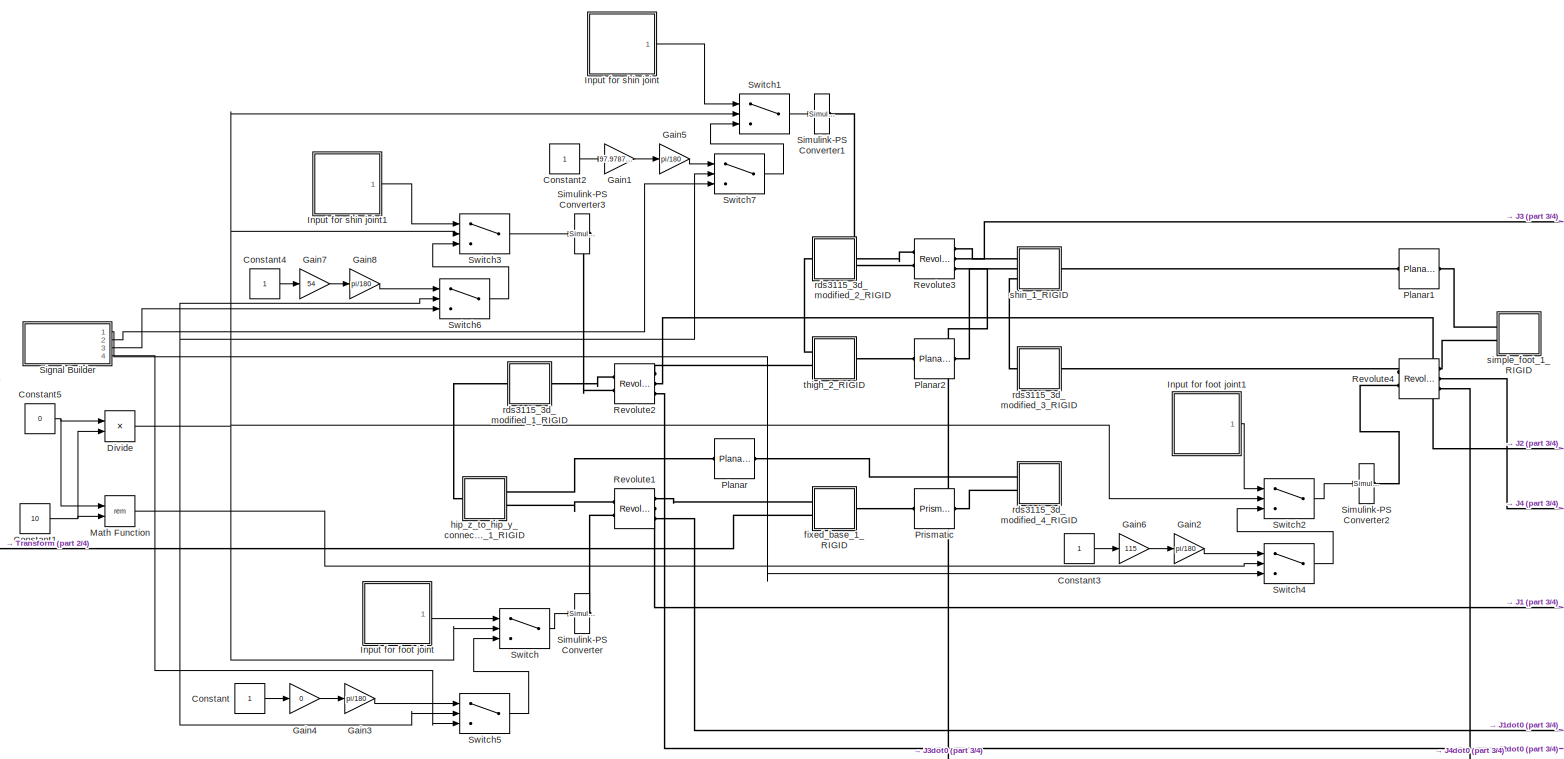
[diagram: root canvas - part 1/4, full width, middle band]
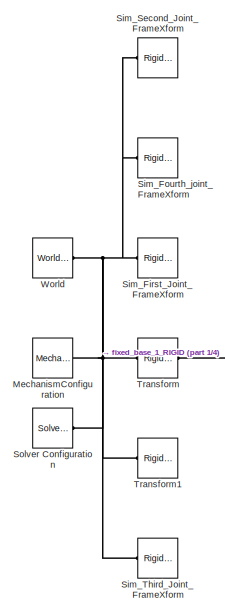
[diagram: root canvas - part 2/4, middle left region]
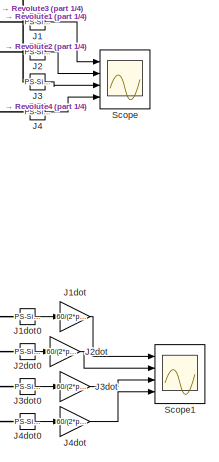
[diagram: root canvas - part 3/4, middle right region]
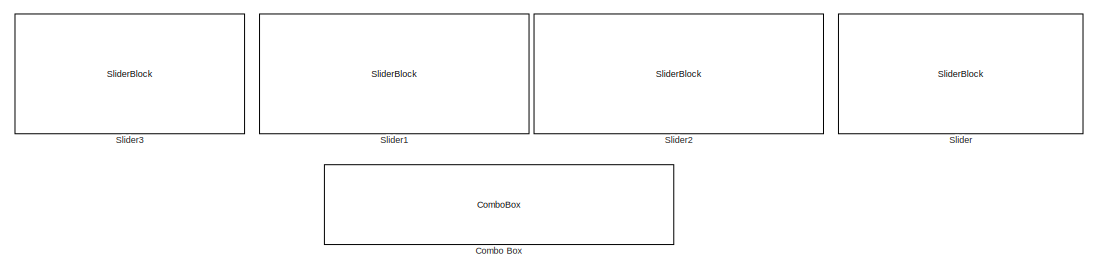
[diagram: root canvas - part 4/4, bottom center region]
MODEL slx_aab422bd7d5e
KIND model
CONFIG AbsTol = auto
CONFIG EnableMultiTasking = off
CONFIG FixedStep = auto
CONFIG MaxStep = auto
CONFIG MinStep = auto
CONFIG RelTol = 1e-3
CONFIG SampleTimeConstraint = Unconstrained
CONFIG SolverName = VariableStepAuto
CONFIG StartTime = 0.0
CONFIG StopTime = 10
WORKSPACE source: external: MATLAB File  (data not in archive)
BLOCK [ComboBox] Combo Box
  LabelPosition = Hide
  SelectedLabel = Signal Builder
BLOCK [Constant] Constant
BLOCK [Constant] Constant1
  Value = 10
BLOCK [Constant] Constant2
BLOCK [Constant] Constant3
BLOCK [Constant] Constant4
BLOCK [Constant] Constant5
  Value = 0
BLOCK [Product] Divide
  Inputs = */
  OutDataTypeStr = int8
  Ports = [2, 1]
BLOCK [Gain] Gain1
  Gain = 97.97872340425532
BLOCK [Gain] Gain2
  Gain = pi/180
BLOCK [Gain] Gain3
  Gain = pi/180
BLOCK [Gain] Gain4
  Gain = 0
BLOCK [Gain] Gain5
  Gain = pi/180
BLOCK [Gain] Gain6
  Gain = 115
BLOCK [Gain] Gain7
  Gain = 54
BLOCK [Gain] Gain8
  Gain = pi/180
BLOCK [SubSystem] Input for foot joint
  Ports = [0, 1]
  RequestExecContextInheritance = off
BLOCK [Clock] Input for foot joint/Clock
BLOCK [Constant] Input for foot joint/Constant
  Value = 95
BLOCK [Constant] Input for foot joint/Constant1
  Value = 0.25
BLOCK [Gain] Input for foot joint/Gain
  Gain = 30
BLOCK [Gain] Input for foot joint/Gain1
  Gain = pi/180
BLOCK [Gain] Input for foot joint/Gain2
  Gain = 2
BLOCK [Outport] Input for foot joint/J1
BLOCK [Reference] Input for foot joint/Sine  REF=simulink/Lookup
Tables/Sine
  Ports = [1, 1]
  SourceBlock = simulink/Lookup\nTables/Sine
  SourceProductBaseCode = SL
  SourceType = Sine and Cosine
BLOCK [Sum] Input for foot joint/Sum
  Inputs = |++
  Ports = [2, 1]
BLOCK [Sum] Input for foot joint/Sum1
  Inputs = |++
  Ports = [2, 1]
BLOCK [SubSystem] Input for foot joint1
  Ports = [0, 1]
  RequestExecContextInheritance = off
BLOCK [Clock] Input for foot joint1/Clock
BLOCK [Constant] Input for foot joint1/Constant
  Value = 95
BLOCK [Constant] Input for foot joint1/Constant1
  Value = 0.25
BLOCK [Gain] Input for foot joint1/Gain
  Gain = 30
BLOCK [Gain] Input for foot joint1/Gain1
  Gain = pi/180
BLOCK [Gain] Input for foot joint1/Gain2
  Gain = 2
BLOCK [Outport] Input for foot joint1/J4
BLOCK [Reference] Input for foot joint1/Sine  REF=simulink/Lookup
Tables/Sine
  Ports = [1, 1]
  SourceBlock = simulink/Lookup\nTables/Sine
  SourceProductBaseCode = SL
  SourceType = Sine and Cosine
BLOCK [Sum] Input for foot joint1/Sum
  Inputs = |++
  Ports = [2, 1]
BLOCK [Sum] Input for foot joint1/Sum1
  Inputs = |++
  Ports = [2, 1]
BLOCK [SubSystem] Input for shin joint
  Ports = [0, 1]
  RequestExecContextInheritance = off
BLOCK [Clock] Input for shin joint/Clock
BLOCK [Constant] Input for shin joint/Constant
  Value = 62.5
BLOCK [Constant] Input for shin joint/Constant1
  Value = 0.5
BLOCK [Gain] Input for shin joint/Gain
  Gain = 60
BLOCK [Gain] Input for shin joint/Gain1
  Gain = pi/180
BLOCK [Gain] Input for shin joint/Gain2
BLOCK [Outport] Input for shin joint/J3
BLOCK [Reference] Input for shin joint/Sine  REF=simulink/Lookup
Tables/Sine
  Ports = [1, 1]
  SourceBlock = simulink/Lookup\nTables/Sine
  SourceProductBaseCode = SL
  SourceType = Sine and Cosine
BLOCK [Sum] Input for shin joint/Sum
  Inputs = |++
  Ports = [2, 1]
BLOCK [Sum] Input for shin joint/Sum1
  Inputs = |++
  Ports = [2, 1]
BLOCK [SubSystem] Input for shin joint1
  Ports = [0, 1]
  RequestExecContextInheritance = off
BLOCK [Clock] Input for shin joint1/Clock
BLOCK [Constant] Input for shin joint1/Constant
  Value = 0
BLOCK [Constant] Input for shin joint1/Constant1
  Value = 0
BLOCK [Gain] Input for shin joint1/Gain
  Gain = 85
BLOCK [Gain] Input for shin joint1/Gain1
  Gain = pi/180
BLOCK [Gain] Input for shin joint1/Gain2
  Gain = 0.6
BLOCK [Outport] Input for shin joint1/J2
BLOCK [Reference] Input for shin joint1/Sine  REF=simulink/Lookup
Tables/Sine
  Ports = [1, 1]
  SourceBlock = simulink/Lookup\nTables/Sine
  SourceProductBaseCode = SL
  SourceType = Sine and Cosine
BLOCK [Sum] Input for shin joint1/Sum
  Inputs = |++
  Ports = [2, 1]
BLOCK [Sum] Input for shin joint1/Sum1
  Inputs = |++
  Ports = [2, 1]
BLOCK [Reference] J1  REF=nesl_utility/PS-Simulink
Converter
  Ports = [0, 1, 0, 0, 0, 1]
  SourceBlock = nesl_utility/PS-Simulink\nConverter
  SourceProductBaseCode = PW,SS
  SourceType = PS-Simulink\nConverter
BLOCK [Gain] J1dot
  Gain = 60/(2*pi)
BLOCK [Reference] J1dot0  REF=nesl_utility/PS-Simulink
Converter
  Ports = [0, 1, 0, 0, 0, 1]
  SourceBlock = nesl_utility/PS-Simulink\nConverter
  SourceProductBaseCode = PW,SS
  SourceType = PS-Simulink\nConverter
BLOCK [Reference] J2  REF=nesl_utility/PS-Simulink
Converter
  Ports = [0, 1, 0, 0, 0, 1]
  SourceBlock = nesl_utility/PS-Simulink\nConverter
  SourceProductBaseCode = PW,SS
  SourceType = PS-Simulink\nConverter
BLOCK [Gain] J2dot
  Gain = 60/(2*pi)
BLOCK [Reference] J2dot0  REF=nesl_utility/PS-Simulink
Converter
  Ports = [0, 1, 0, 0, 0, 1]
  SourceBlock = nesl_utility/PS-Simulink\nConverter
  SourceProductBaseCode = PW,SS
  SourceType = PS-Simulink\nConverter
BLOCK [Reference] J3  REF=nesl_utility/PS-Simulink
Converter
  Ports = [0, 1, 0, 0, 0, 1]
  SourceBlock = nesl_utility/PS-Simulink\nConverter
  SourceProductBaseCode = PW,SS
  SourceType = PS-Simulink\nConverter
BLOCK [Gain] J3dot
  Gain = 60/(2*pi)
BLOCK [Reference] J3dot0  REF=nesl_utility/PS-Simulink
Converter
  Ports = [0, 1, 0, 0, 0, 1]
  SourceBlock = nesl_utility/PS-Simulink\nConverter
  SourceProductBaseCode = PW,SS
  SourceType = PS-Simulink\nConverter
BLOCK [Reference] J4  REF=nesl_utility/PS-Simulink
Converter
  Ports = [0, 1, 0, 0, 0, 1]
  SourceBlock = nesl_utility/PS-Simulink\nConverter
  SourceProductBaseCode = PW,SS
  SourceType = PS-Simulink\nConverter
BLOCK [Gain] J4dot
  Gain = 60/(2*pi)
BLOCK [Reference] J4dot0  REF=nesl_utility/PS-Simulink
Converter
  Ports = [0, 1, 0, 0, 0, 1]
  SourceBlock = nesl_utility/PS-Simulink\nConverter
  SourceProductBaseCode = PW,SS
  SourceType = PS-Simulink\nConverter
BLOCK [Math] Math Function
  Operator = rem
  Ports = [2, 1]
BLOCK [Reference] MechanismConfiguration  REF=sm_lib/Utilities/Mechanism
Configuration
  Ports = [0, 0, 0, 0, 0, 0, 1]
  SourceBlock = sm_lib/Utilities/Mechanism\nConfiguration
  SourceProductBaseCode = MS
  SourceType = Mechanism\nConfiguration
BLOCK [Reference] Planar  REF=sm_lib/Joints/Planar Joint
  Ports = [0, 0, 0, 0, 0, 1, 1]
  SourceBlock = sm_lib/Joints/Planar Joint
  SourceProductBaseCode = MS
  SourceType = Planar Joint
BLOCK [Reference] Planar1  REF=sm_lib/Joints/Planar Joint
  Ports = [0, 0, 0, 0, 0, 1, 1]
  SourceBlock = sm_lib/Joints/Planar Joint
  SourceProductBaseCode = MS
  SourceType = Planar Joint
BLOCK [Reference] Planar2  REF=sm_lib/Joints/Planar Joint
  Ports = [0, 0, 0, 0, 0, 1, 1]
  SourceBlock = sm_lib/Joints/Planar Joint
  SourceProductBaseCode = MS
  SourceType = Planar Joint
BLOCK [Reference] Prismatic  REF=sm_lib/Joints/Prismatic
Joint
  Ports = [0, 0, 0, 0, 0, 1, 1]
  SourceBlock = sm_lib/Joints/Prismatic\nJoint
  SourceProductBaseCode = MS
  SourceType = Prismatic\nJoint
BLOCK [Reference] Revolute1  REF=sm_lib/Joints/Revolute Joint
  Ports = [0, 0, 0, 0, 0, 2, 3]
  SourceBlock = sm_lib/Joints/Revolute Joint
  SourceProductBaseCode = MS
  SourceType = Revolute Joint
BLOCK [Reference] Revolute2  REF=sm_lib/Joints/Revolute Joint
  Ports = [0, 0, 0, 0, 0, 2, 3]
  SourceBlock = sm_lib/Joints/Revolute Joint
  SourceProductBaseCode = MS
  SourceType = Revolute Joint
BLOCK [Reference] Revolute3  REF=sm_lib/Joints/Revolute Joint
  Ports = [0, 0, 0, 0, 0, 2, 3]
  SourceBlock = sm_lib/Joints/Revolute Joint
  SourceProductBaseCode = MS
  SourceType = Revolute Joint
BLOCK [Reference] Revolute4  REF=sm_lib/Joints/Revolute Joint
  Ports = [0, 0, 0, 0, 0, 2, 3]
  SourceBlock = sm_lib/Joints/Revolute Joint
  SourceProductBaseCode = MS
  SourceType = Revolute Joint
BLOCK [Scope] Scope
  Floating = off
  NumInputPorts = 4
  Ports = [4]
  ScopeSpecificationString = Simulink.scopes.TimeScopeBlockCfg('CurrentConfiguration', extmgr.ConfigurationSet(extmgr.Configuration('Core','General UI',true),extmgr.Configuration('Core','Source UI',true),extmgr.Configuration('Sources','WiredSimulink',true),extmgr.Configuration('Visuals','Time Domain',true,'SerializedDisplays',{struct('MinYLimReal','-0.35736','MaxYLimReal','0.21732','YLabelReal','','MinYLimMag','0.00000','MaxY...<+3411ch>
BLOCK [Scope] Scope1
  Floating = off
  NumInputPorts = 4
  Ports = [4]
  ScopeSpecificationString = Simulink.scopes.TimeScopeBlockCfg('CurrentConfiguration', extmgr.ConfigurationSet(extmgr.Configuration('Core','General UI',true),extmgr.Configuration('Core','Source UI',true),extmgr.Configuration('Sources','WiredSimulink',true,'DataLoggingVariableName','ScopeData1'),extmgr.Configuration('Visuals','Time Domain',true,'SerializedDisplays',{struct('MinYLimReal','-1.44413','MaxYLimReal','1.83955','YLab...<+3463ch>
BLOCK [SubSystem] Signal Builder
  ClipboardFcn = sigbuilder_block('clipboard');
  CloseFcn = sigbuilder_block('close');
  ContinueFcn = sigbuilder_block('continue');
  CopyFcn = sigbuilder_block('copy');
  DeleteFcn = sigbuilder_block('delete');
  LoadFcn = sigbuilder_block('load');
  MaskHideContents = on
  ModelCloseFcn = sigbuilder_block('modelClose');
  NameChangeFcn = sigbuilder_block('namechange');
  NameLocation = top
  OpenFcn = sigbuilder_block('open',[5.4 30 1141.2 522.6 ]);
  PauseFcn = sigbuilder_block('pause');
  Ports = [0, 4]
  PreSaveFcn = sigbuilder_block('preSave');
  RequestExecContextInheritance = off
  StartFcn = sigbuilder_block('start');
  StopFcn = sigbuilder_block('stop');
  Tag = STV Subsys
BLOCK [Demux] Signal Builder/Demux
  DisplayOption = none
  Ports = [1, 4]
  Tag = STV Demux
BLOCK [FromWorkspace] Signal Builder/FromWs
  Tag = STV FromWs
  VariableName = tuvar
BLOCK [Outport] Signal Builder/Signal 1
  Port = 4
  Tag = STV Outport
BLOCK [Outport] Signal Builder/Signal 2
  Port = 3
  Tag = STV Outport
BLOCK [Outport] Signal Builder/Signal 3
  Port = 2
  Tag = STV Outport
BLOCK [Outport] Signal Builder/Signal 4
  Tag = STV Outport
BLOCK [Reference] Sim_First_Joint_FrameXform  REF=sm_lib/Frames and
Transforms/Rigid
Transform
  Ports = [0, 0, 0, 0, 0, 1, 1]
  SourceBlock = sm_lib/Frames and\nTransforms/Rigid\nTransform
  SourceProductBaseCode = MS
  SourceType = Rigid\nTransform
BLOCK [Reference] Sim_Fourth_joint_FrameXform  REF=sm_lib/Frames and
Transforms/Rigid
Transform
  Ports = [0, 0, 0, 0, 0, 1, 1]
  SourceBlock = sm_lib/Frames and\nTransforms/Rigid\nTransform
  SourceProductBaseCode = MS
  SourceType = Rigid\nTransform
BLOCK [Reference] Sim_Second_Joint_FrameXform  REF=sm_lib/Frames and
Transforms/Rigid
Transform
  Ports = [0, 0, 0, 0, 0, 1, 1]
  SourceBlock = sm_lib/Frames and\nTransforms/Rigid\nTransform
  SourceProductBaseCode = MS
  SourceType = Rigid\nTransform
BLOCK [Reference] Sim_Third_Joint_FrameXform  REF=sm_lib/Frames and
Transforms/Rigid
Transform
  Ports = [0, 0, 0, 0, 0, 1, 1]
  SourceBlock = sm_lib/Frames and\nTransforms/Rigid\nTransform
  SourceProductBaseCode = MS
  SourceType = Rigid\nTransform
BLOCK [Reference] Simulink-PS Converter  REF=nesl_utility/Simulink-PS
Converter
  NameLocation = left
  Ports = [1, 0, 0, 0, 0, 0, 1]
  SourceBlock = nesl_utility/Simulink-PS\nConverter
  SourceProductBaseCode = PW,SS
  SourceType = Simulink-PS\nConverter
BLOCK [Reference] Simulink-PS Converter1  REF=nesl_utility/Simulink-PS
Converter
  NameLocation = left
  Ports = [1, 0, 0, 0, 0, 0, 1]
  SourceBlock = nesl_utility/Simulink-PS\nConverter
  SourceProductBaseCode = PW,SS
  SourceType = Simulink-PS\nConverter
BLOCK [Reference] Simulink-PS Converter2  REF=nesl_utility/Simulink-PS
Converter
  NameLocation = left
  Ports = [1, 0, 0, 0, 0, 0, 1]
  SourceBlock = nesl_utility/Simulink-PS\nConverter
  SourceProductBaseCode = PW,SS
  SourceType = Simulink-PS\nConverter
BLOCK [Reference] Simulink-PS Converter3  REF=nesl_utility/Simulink-PS
Converter
  NameLocation = left
  Ports = [1, 0, 0, 0, 0, 0, 1]
  SourceBlock = nesl_utility/Simulink-PS\nConverter
  SourceProductBaseCode = PW,SS
  SourceType = Simulink-PS\nConverter
BLOCK [SliderBlock] Slider
  ScaleMax = 130
  ScaleMin = 60
BLOCK [SliderBlock] Slider1
  ScaleMax = 90
  ScaleMin = -90
BLOCK [SliderBlock] Slider2
  ScaleMax = 120
  ScaleMin = 5
BLOCK [SliderBlock] Slider3
  ScaleMax = 360
BLOCK [Reference] Solver Configuration  REF=nesl_utility/Solver
Configuration
  Ports = [0, 0, 0, 0, 0, 0, 1]
  SourceBlock = nesl_utility/Solver\nConfiguration
  SourceProductBaseCode = PW,SS
  SourceType = Solver\nConfiguration
BLOCK [Switch] Switch
  Criteria = u2 > Threshold
  InputSameDT = off
  SaturateOnIntegerOverflow = off
BLOCK [Switch] Switch1
  Criteria = u2 > Threshold
  InputSameDT = off
  SaturateOnIntegerOverflow = off
BLOCK [Switch] Switch2
  Criteria = u2 > Threshold
  InputSameDT = off
  SaturateOnIntegerOverflow = off
BLOCK [Switch] Switch3
  Criteria = u2 > Threshold
  InputSameDT = off
  SaturateOnIntegerOverflow = off
BLOCK [Switch] Switch4
  Criteria = u2 > Threshold
  InputSameDT = off
  SaturateOnIntegerOverflow = off
BLOCK [Switch] Switch5
  Criteria = u2 > Threshold
  InputSameDT = off
  SaturateOnIntegerOverflow = off
BLOCK [Switch] Switch6
  Criteria = u2 > Threshold
  InputSameDT = off
  SaturateOnIntegerOverflow = off
BLOCK [Switch] Switch7
  Criteria = u2 > Threshold
  InputSameDT = off
  SaturateOnIntegerOverflow = off
BLOCK [Reference] Transform  REF=sm_lib/Frames and
Transforms/Rigid
Transform
  Ports = [0, 0, 0, 0, 0, 1, 1]
  SourceBlock = sm_lib/Frames and\nTransforms/Rigid\nTransform
  SourceProductBaseCode = MS
  SourceType = Rigid\nTransform
BLOCK [Reference] Transform1  REF=sm_lib/Frames and
Transforms/Rigid
Transform
  Ports = [0, 0, 0, 0, 0, 1, 1]
  SourceBlock = sm_lib/Frames and\nTransforms/Rigid\nTransform
  SourceProductBaseCode = MS
  SourceType = Rigid\nTransform
BLOCK [Reference] World  REF=sm_lib/Frames and
Transforms/World Frame
  Ports = [0, 0, 0, 0, 0, 0, 1]
  SourceBlock = sm_lib/Frames and\nTransforms/World Frame
  SourceProductBaseCode = MS
  SourceType = World Frame
BLOCK [SubSystem] fixed_base_1_RIGID
  Ports = [0, 0, 0, 0, 0, 2, 1]
  RequestExecContextInheritance = off
BLOCK [PMIOPort] fixed_base_1_RIGID/F
  Side = Left
BLOCK [PMIOPort] fixed_base_1_RIGID/F1
  Port = 3
  Side = Right
BLOCK [PMIOPort] fixed_base_1_RIGID/F2
  Port = 2
  Side = Left
BLOCK [Reference] fixed_base_1_RIGID/ReferenceFrame  REF=sm_lib/Frames and
Transforms/Reference
Frame
  Ports = [0, 0, 0, 0, 0, 0, 1]
  SourceBlock = sm_lib/Frames and\nTransforms/Reference\nFrame
  SourceProductBaseCode = MS
  SourceType = Reference\nFrame
BLOCK [Reference] fixed_base_1_RIGID/Solid  REF=sm_lib/Body Elements/File Solid
  Ports = [0, 0, 0, 0, 0, 0, 1]
  SourceBlock = sm_lib/Body Elements/File Solid
  SourceProductBaseCode = MS
  SourceType = File Solid
BLOCK [Reference] fixed_base_1_RIGID/Transform  REF=sm_lib/Frames and
Transforms/Rigid
Transform
  Ports = [0, 0, 0, 0, 0, 1, 1]
  SourceBlock = sm_lib/Frames and\nTransforms/Rigid\nTransform
  SourceProductBaseCode = MS
  SourceType = Rigid\nTransform
BLOCK [Reference] fixed_base_1_RIGID/Transform1  REF=sm_lib/Frames and
Transforms/Rigid
Transform
  Ports = [0, 0, 0, 0, 0, 1, 1]
  SourceBlock = sm_lib/Frames and\nTransforms/Rigid\nTransform
  SourceProductBaseCode = MS
  SourceType = Rigid\nTransform
BLOCK [Reference] fixed_base_1_RIGID/Transform2  REF=sm_lib/Frames and
Transforms/Rigid
Transform
  Ports = [0, 0, 0, 0, 0, 1, 1]
  SourceBlock = sm_lib/Frames and\nTransforms/Rigid\nTransform
  SourceProductBaseCode = MS
  SourceType = Rigid\nTransform
BLOCK [SubSystem] hip_z_to_hip_y_connecto_modified_1_RIGID
  Ports = [0, 0, 0, 0, 0, 1, 2]
  RequestExecContextInheritance = off
BLOCK [PMIOPort] hip_z_to_hip_y_connecto_modified_1_RIGID/F
  Port = 3
  Side = Right
BLOCK [PMIOPort] hip_z_to_hip_y_connecto_modified_1_RIGID/F1
  Side = Left
BLOCK [PMIOPort] hip_z_to_hip_y_connecto_modified_1_RIGID/F2
  Port = 2
  Side = Right
BLOCK [Reference] hip_z_to_hip_y_connecto_modified_1_RIGID/ReferenceFrame  REF=sm_lib/Frames and
Transforms/Reference
Frame
  Ports = [0, 0, 0, 0, 0, 0, 1]
  SourceBlock = sm_lib/Frames and\nTransforms/Reference\nFrame
  SourceProductBaseCode = MS
  SourceType = Reference\nFrame
BLOCK [Reference] hip_z_to_hip_y_connecto_modified_1_RIGID/Solid  REF=sm_lib/Body Elements/File Solid
  Ports = [0, 0, 0, 0, 0, 0, 1]
  SourceBlock = sm_lib/Body Elements/File Solid
  SourceProductBaseCode = MS
  SourceType = File Solid
BLOCK [Reference] hip_z_to_hip_y_connecto_modified_1_RIGID/Transform  REF=sm_lib/Frames and
Transforms/Rigid
Transform
  Ports = [0, 0, 0, 0, 0, 1, 1]
  SourceBlock = sm_lib/Frames and\nTransforms/Rigid\nTransform
  SourceProductBaseCode = MS
  SourceType = Rigid\nTransform
BLOCK [Reference] hip_z_to_hip_y_connecto_modified_1_RIGID/Transform1  REF=sm_lib/Frames and
Transforms/Rigid
Transform
  Ports = [0, 0, 0, 0, 0, 1, 1]
  SourceBlock = sm_lib/Frames and\nTransforms/Rigid\nTransform
  SourceProductBaseCode = MS
  SourceType = Rigid\nTransform
BLOCK [Reference] hip_z_to_hip_y_connecto_modified_1_RIGID/Transform2  REF=sm_lib/Frames and
Transforms/Rigid
Transform
  Ports = [0, 0, 0, 0, 0, 1, 1]
  SourceBlock = sm_lib/Frames and\nTransforms/Rigid\nTransform
  SourceProductBaseCode = MS
  SourceType = Rigid\nTransform
BLOCK [SubSystem] rds3115_3d_modified_1_RIGID
  Ports = [0, 0, 0, 0, 0, 1, 1]
  RequestExecContextInheritance = off
BLOCK [PMIOPort] rds3115_3d_modified_1_RIGID/F
  Side = Left
BLOCK [PMIOPort] rds3115_3d_modified_1_RIGID/F1
  Port = 2
  Side = Right
BLOCK [SubSystem] rds3115_3d_modified_1_RIGID/Part43_1_RIGID
  Ports = [0, 0, 0, 0, 0, 1]
  RequestExecContextInheritance = off
BLOCK [PMIOPort] rds3115_3d_modified_1_RIGID/Part43_1_RIGID/F
  Side = Left
BLOCK [Reference] rds3115_3d_modified_1_RIGID/Part43_1_RIGID/ReferenceFrame  REF=sm_lib/Frames and
Transforms/Reference
Frame
  Ports = [0, 0, 0, 0, 0, 0, 1]
  SourceBlock = sm_lib/Frames and\nTransforms/Reference\nFrame
  SourceProductBaseCode = MS
  SourceType = Reference\nFrame
BLOCK [Reference] rds3115_3d_modified_1_RIGID/Part43_1_RIGID/Solid  REF=sm_lib/Body Elements/File Solid
  Ports = [0, 0, 0, 0, 0, 0, 1]
  SourceBlock = sm_lib/Body Elements/File Solid
  SourceProductBaseCode = MS
  SourceType = File Solid
BLOCK [Reference] rds3115_3d_modified_1_RIGID/ReferenceFrame  REF=sm_lib/Frames and
Transforms/Reference
Frame
  Ports = [0, 0, 0, 0, 0, 0, 1]
  SourceBlock = sm_lib/Frames and\nTransforms/Reference\nFrame
  SourceProductBaseCode = MS
  SourceType = Reference\nFrame
BLOCK [Reference] rds3115_3d_modified_1_RIGID/Transform  REF=sm_lib/Frames and
Transforms/Rigid
Transform
  Ports = [0, 0, 0, 0, 0, 1, 1]
  SourceBlock = sm_lib/Frames and\nTransforms/Rigid\nTransform
  SourceProductBaseCode = MS
  SourceType = Rigid\nTransform
BLOCK [Reference] rds3115_3d_modified_1_RIGID/Transform1  REF=sm_lib/Frames and
Transforms/Rigid
Transform
  Ports = [0, 0, 0, 0, 0, 1, 1]
  SourceBlock = sm_lib/Frames and\nTransforms/Rigid\nTransform
  SourceProductBaseCode = MS
  SourceType = Rigid\nTransform
BLOCK [Reference] rds3115_3d_modified_1_RIGID/Transform2  REF=sm_lib/Frames and
Transforms/Rigid
Transform
  Ports = [0, 0, 0, 0, 0, 1, 1]
  SourceBlock = sm_lib/Frames and\nTransforms/Rigid\nTransform
  SourceProductBaseCode = MS
  SourceType = Rigid\nTransform
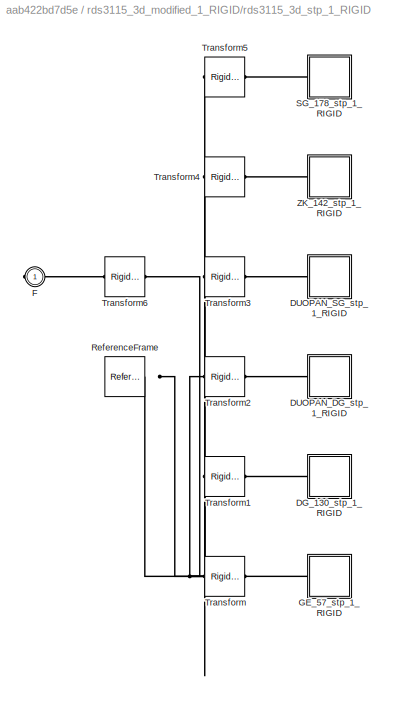
BLOCK [SubSystem] rds3115_3d_modified_1_RIGID/rds3115_3d_stp_1_RIGID
  Ports = [0, 0, 0, 0, 0, 0, 1]
  RequestExecContextInheritance = off
BLOCK [SubSystem] rds3115_3d_modified_1_RIGID/rds3115_3d_stp_1_RIGID/DG_130_stp_1_RIGID
  Ports = [0, 0, 0, 0, 0, 1]
  RequestExecContextInheritance = off
BLOCK [PMIOPort] rds3115_3d_modified_1_RIGID/rds3115_3d_stp_1_RIGID/DG_130_stp_1_RIGID/F
  Side = Left
BLOCK [Reference] rds3115_3d_modified_1_RIGID/rds3115_3d_stp_1_RIGID/DG_130_stp_1_RIGID/ReferenceFrame  REF=sm_lib/Frames and
Transforms/Reference
Frame
  Ports = [0, 0, 0, 0, 0, 0, 1]
  SourceBlock = sm_lib/Frames and\nTransforms/Reference\nFrame
  SourceProductBaseCode = MS
  SourceType = Reference\nFrame
BLOCK [Reference] rds3115_3d_modified_1_RIGID/rds3115_3d_stp_1_RIGID/DG_130_stp_1_RIGID/Solid  REF=sm_lib/Body Elements/File Solid
  Ports = [0, 0, 0, 0, 0, 0, 1]
  SourceBlock = sm_lib/Body Elements/File Solid
  SourceProductBaseCode = MS
  SourceType = File Solid
BLOCK [SubSystem] rds3115_3d_modified_1_RIGID/rds3115_3d_stp_1_RIGID/DUOPAN_DG_stp_1_RIGID
  Ports = [0, 0, 0, 0, 0, 1]
  RequestExecContextInheritance = off
BLOCK [PMIOPort] rds3115_3d_modified_1_RIGID/rds3115_3d_stp_1_RIGID/DUOPAN_DG_stp_1_RIGID/F
  Side = Left
BLOCK [Reference] rds3115_3d_modified_1_RIGID/rds3115_3d_stp_1_RIGID/DUOPAN_DG_stp_1_RIGID/ReferenceFrame  REF=sm_lib/Frames and
Transforms/Reference
Frame
  Ports = [0, 0, 0, 0, 0, 0, 1]
  SourceBlock = sm_lib/Frames and\nTransforms/Reference\nFrame
  SourceProductBaseCode = MS
  SourceType = Reference\nFrame
BLOCK [Reference] rds3115_3d_modified_1_RIGID/rds3115_3d_stp_1_RIGID/DUOPAN_DG_stp_1_RIGID/Solid  REF=sm_lib/Body Elements/File Solid
  Ports = [0, 0, 0, 0, 0, 0, 1]
  SourceBlock = sm_lib/Body Elements/File Solid
  SourceProductBaseCode = MS
  SourceType = File Solid
BLOCK [SubSystem] rds3115_3d_modified_1_RIGID/rds3115_3d_stp_1_RIGID/DUOPAN_SG_stp_1_RIGID
  Ports = [0, 0, 0, 0, 0, 1]
  RequestExecContextInheritance = off
BLOCK [PMIOPort] rds3115_3d_modified_1_RIGID/rds3115_3d_stp_1_RIGID/DUOPAN_SG_stp_1_RIGID/F
  Side = Left
BLOCK [Reference] rds3115_3d_modified_1_RIGID/rds3115_3d_stp_1_RIGID/DUOPAN_SG_stp_1_RIGID/ReferenceFrame  REF=sm_lib/Frames and
Transforms/Reference
Frame
  Ports = [0, 0, 0, 0, 0, 0, 1]
  SourceBlock = sm_lib/Frames and\nTransforms/Reference\nFrame
  SourceProductBaseCode = MS
  SourceType = Reference\nFrame
BLOCK [Reference] rds3115_3d_modified_1_RIGID/rds3115_3d_stp_1_RIGID/DUOPAN_SG_stp_1_RIGID/Solid  REF=sm_lib/Body Elements/File Solid
  Ports = [0, 0, 0, 0, 0, 0, 1]
  SourceBlock = sm_lib/Body Elements/File Solid
  SourceProductBaseCode = MS
  SourceType = File Solid
BLOCK [PMIOPort] rds3115_3d_modified_1_RIGID/rds3115_3d_stp_1_RIGID/F
  Side = Right
BLOCK [SubSystem] rds3115_3d_modified_1_RIGID/rds3115_3d_stp_1_RIGID/GE_57_stp_1_RIGID
  Ports = [0, 0, 0, 0, 0, 1]
  RequestExecContextInheritance = off
BLOCK [PMIOPort] rds3115_3d_modified_1_RIGID/rds3115_3d_stp_1_RIGID/GE_57_stp_1_RIGID/F
  Side = Left
BLOCK [Reference] rds3115_3d_modified_1_RIGID/rds3115_3d_stp_1_RIGID/GE_57_stp_1_RIGID/ReferenceFrame  REF=sm_lib/Frames and
Transforms/Reference
Frame
  Ports = [0, 0, 0, 0, 0, 0, 1]
  SourceBlock = sm_lib/Frames and\nTransforms/Reference\nFrame
  SourceProductBaseCode = MS
  SourceType = Reference\nFrame
BLOCK [Reference] rds3115_3d_modified_1_RIGID/rds3115_3d_stp_1_RIGID/GE_57_stp_1_RIGID/Solid  REF=sm_lib/Body Elements/File Solid
  Ports = [0, 0, 0, 0, 0, 0, 1]
  SourceBlock = sm_lib/Body Elements/File Solid
  SourceProductBaseCode = MS
  SourceType = File Solid
BLOCK [Reference] rds3115_3d_modified_1_RIGID/rds3115_3d_stp_1_RIGID/ReferenceFrame  REF=sm_lib/Frames and
Transforms/Reference
Frame
  Ports = [0, 0, 0, 0, 0, 0, 1]
  SourceBlock = sm_lib/Frames and\nTransforms/Reference\nFrame
  SourceProductBaseCode = MS
  SourceType = Reference\nFrame
BLOCK [SubSystem] rds3115_3d_modified_1_RIGID/rds3115_3d_stp_1_RIGID/SG_178_stp_1_RIGID
  Ports = [0, 0, 0, 0, 0, 1]
  RequestExecContextInheritance = off
BLOCK [PMIOPort] rds3115_3d_modified_1_RIGID/rds3115_3d_stp_1_RIGID/SG_178_stp_1_RIGID/F
  Side = Left
BLOCK [Reference] rds3115_3d_modified_1_RIGID/rds3115_3d_stp_1_RIGID/SG_178_stp_1_RIGID/ReferenceFrame  REF=sm_lib/Frames and
Transforms/Reference
Frame
  Ports = [0, 0, 0, 0, 0, 0, 1]
  SourceBlock = sm_lib/Frames and\nTransforms/Reference\nFrame
  SourceProductBaseCode = MS
  SourceType = Reference\nFrame
BLOCK [Reference] rds3115_3d_modified_1_RIGID/rds3115_3d_stp_1_RIGID/SG_178_stp_1_RIGID/Solid  REF=sm_lib/Body Elements/File Solid
  Ports = [0, 0, 0, 0, 0, 0, 1]
  SourceBlock = sm_lib/Body Elements/File Solid
  SourceProductBaseCode = MS
  SourceType = File Solid
BLOCK [Reference] rds3115_3d_modified_1_RIGID/rds3115_3d_stp_1_RIGID/Transform  REF=sm_lib/Frames and
Transforms/Rigid
Transform
  Ports = [0, 0, 0, 0, 0, 1, 1]
  SourceBlock = sm_lib/Frames and\nTransforms/Rigid\nTransform
  SourceProductBaseCode = MS
  SourceType = Rigid\nTransform
BLOCK [Reference] rds3115_3d_modified_1_RIGID/rds3115_3d_stp_1_RIGID/Transform1  REF=sm_lib/Frames and
Transforms/Rigid
Transform
  Ports = [0, 0, 0, 0, 0, 1, 1]
  SourceBlock = sm_lib/Frames and\nTransforms/Rigid\nTransform
  SourceProductBaseCode = MS
  SourceType = Rigid\nTransform
BLOCK [Reference] rds3115_3d_modified_1_RIGID/rds3115_3d_stp_1_RIGID/Transform2  REF=sm_lib/Frames and
Transforms/Rigid
Transform
  Ports = [0, 0, 0, 0, 0, 1, 1]
  SourceBlock = sm_lib/Frames and\nTransforms/Rigid\nTransform
  SourceProductBaseCode = MS
  SourceType = Rigid\nTransform
BLOCK [Reference] rds3115_3d_modified_1_RIGID/rds3115_3d_stp_1_RIGID/Transform3  REF=sm_lib/Frames and
Transforms/Rigid
Transform
  Ports = [0, 0, 0, 0, 0, 1, 1]
  SourceBlock = sm_lib/Frames and\nTransforms/Rigid\nTransform
  SourceProductBaseCode = MS
  SourceType = Rigid\nTransform
BLOCK [Reference] rds3115_3d_modified_1_RIGID/rds3115_3d_stp_1_RIGID/Transform4  REF=sm_lib/Frames and
Transforms/Rigid
Transform
  Ports = [0, 0, 0, 0, 0, 1, 1]
  SourceBlock = sm_lib/Frames and\nTransforms/Rigid\nTransform
  SourceProductBaseCode = MS
  SourceType = Rigid\nTransform
BLOCK [Reference] rds3115_3d_modified_1_RIGID/rds3115_3d_stp_1_RIGID/Transform5  REF=sm_lib/Frames and
Transforms/Rigid
Transform
  Ports = [0, 0, 0, 0, 0, 1, 1]
  SourceBlock = sm_lib/Frames and\nTransforms/Rigid\nTransform
  SourceProductBaseCode = MS
  SourceType = Rigid\nTransform
BLOCK [Reference] rds3115_3d_modified_1_RIGID/rds3115_3d_stp_1_RIGID/Transform6  REF=sm_lib/Frames and
Transforms/Rigid
Transform
  Ports = [0, 0, 0, 0, 0, 1, 1]
  SourceBlock = sm_lib/Frames and\nTransforms/Rigid\nTransform
  SourceProductBaseCode = MS
  SourceType = Rigid\nTransform
BLOCK [SubSystem] rds3115_3d_modified_1_RIGID/rds3115_3d_stp_1_RIGID/ZK_142_stp_1_RIGID
  Ports = [0, 0, 0, 0, 0, 1]
  RequestExecContextInheritance = off
BLOCK [PMIOPort] rds3115_3d_modified_1_RIGID/rds3115_3d_stp_1_RIGID/ZK_142_stp_1_RIGID/F
  Side = Left
BLOCK [Reference] rds3115_3d_modified_1_RIGID/rds3115_3d_stp_1_RIGID/ZK_142_stp_1_RIGID/ReferenceFrame  REF=sm_lib/Frames and
Transforms/Reference
Frame
  Ports = [0, 0, 0, 0, 0, 0, 1]
  SourceBlock = sm_lib/Frames and\nTransforms/Reference\nFrame
  SourceProductBaseCode = MS
  SourceType = Reference\nFrame
BLOCK [Reference] rds3115_3d_modified_1_RIGID/rds3115_3d_stp_1_RIGID/ZK_142_stp_1_RIGID/Solid  REF=sm_lib/Body Elements/File Solid
  Ports = [0, 0, 0, 0, 0, 0, 1]
  SourceBlock = sm_lib/Body Elements/File Solid
  SourceProductBaseCode = MS
  SourceType = File Solid
BLOCK [SubSystem] rds3115_3d_modified_2_RIGID
  Ports = [0, 0, 0, 0, 0, 1, 1]
  RequestExecContextInheritance = off
BLOCK [PMIOPort] rds3115_3d_modified_2_RIGID/F
  Side = Left
BLOCK [PMIOPort] rds3115_3d_modified_2_RIGID/F1
  Port = 2
  Side = Right
BLOCK [SubSystem] rds3115_3d_modified_2_RIGID/Part43_1_RIGID
  Ports = [0, 0, 0, 0, 0, 1]
  RequestExecContextInheritance = off
BLOCK [PMIOPort] rds3115_3d_modified_2_RIGID/Part43_1_RIGID/F
  Side = Left
BLOCK [Reference] rds3115_3d_modified_2_RIGID/Part43_1_RIGID/ReferenceFrame  REF=sm_lib/Frames and
Transforms/Reference
Frame
  Ports = [0, 0, 0, 0, 0, 0, 1]
  SourceBlock = sm_lib/Frames and\nTransforms/Reference\nFrame
  SourceProductBaseCode = MS
  SourceType = Reference\nFrame
BLOCK [Reference] rds3115_3d_modified_2_RIGID/Part43_1_RIGID/Solid  REF=sm_lib/Body Elements/File Solid
  Ports = [0, 0, 0, 0, 0, 0, 1]
  SourceBlock = sm_lib/Body Elements/File Solid
  SourceProductBaseCode = MS
  SourceType = File Solid
BLOCK [Reference] rds3115_3d_modified_2_RIGID/ReferenceFrame  REF=sm_lib/Frames and
Transforms/Reference
Frame
  Ports = [0, 0, 0, 0, 0, 0, 1]
  SourceBlock = sm_lib/Frames and\nTransforms/Reference\nFrame
  SourceProductBaseCode = MS
  SourceType = Reference\nFrame
BLOCK [Reference] rds3115_3d_modified_2_RIGID/Transform  REF=sm_lib/Frames and
Transforms/Rigid
Transform
  Ports = [0, 0, 0, 0, 0, 1, 1]
  SourceBlock = sm_lib/Frames and\nTransforms/Rigid\nTransform
  SourceProductBaseCode = MS
  SourceType = Rigid\nTransform
BLOCK [Reference] rds3115_3d_modified_2_RIGID/Transform1  REF=sm_lib/Frames and
Transforms/Rigid
Transform
  Ports = [0, 0, 0, 0, 0, 1, 1]
  SourceBlock = sm_lib/Frames and\nTransforms/Rigid\nTransform
  SourceProductBaseCode = MS
  SourceType = Rigid\nTransform
BLOCK [Reference] rds3115_3d_modified_2_RIGID/Transform2  REF=sm_lib/Frames and
Transforms/Rigid
Transform
  Ports = [0, 0, 0, 0, 0, 1, 1]
  SourceBlock = sm_lib/Frames and\nTransforms/Rigid\nTransform
  SourceProductBaseCode = MS
  SourceType = Rigid\nTransform
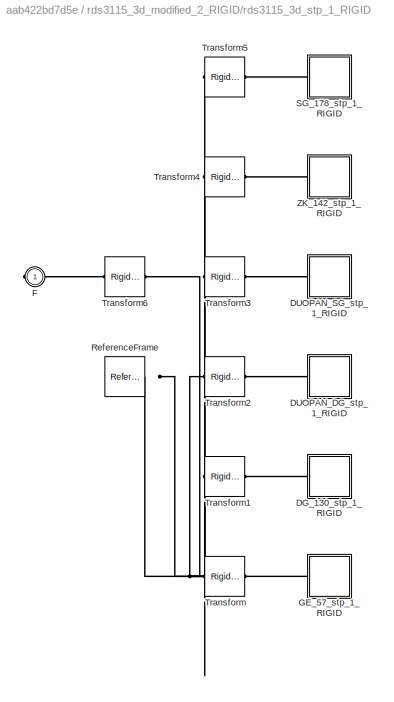
BLOCK [SubSystem] rds3115_3d_modified_2_RIGID/rds3115_3d_stp_1_RIGID
  Ports = [0, 0, 0, 0, 0, 0, 1]
  RequestExecContextInheritance = off
BLOCK [SubSystem] rds3115_3d_modified_2_RIGID/rds3115_3d_stp_1_RIGID/DG_130_stp_1_RIGID
  Ports = [0, 0, 0, 0, 0, 1]
  RequestExecContextInheritance = off
BLOCK [PMIOPort] rds3115_3d_modified_2_RIGID/rds3115_3d_stp_1_RIGID/DG_130_stp_1_RIGID/F
  Side = Left
BLOCK [Reference] rds3115_3d_modified_2_RIGID/rds3115_3d_stp_1_RIGID/DG_130_stp_1_RIGID/ReferenceFrame  REF=sm_lib/Frames and
Transforms/Reference
Frame
  Ports = [0, 0, 0, 0, 0, 0, 1]
  SourceBlock = sm_lib/Frames and\nTransforms/Reference\nFrame
  SourceProductBaseCode = MS
  SourceType = Reference\nFrame
BLOCK [Reference] rds3115_3d_modified_2_RIGID/rds3115_3d_stp_1_RIGID/DG_130_stp_1_RIGID/Solid  REF=sm_lib/Body Elements/File Solid
  Ports = [0, 0, 0, 0, 0, 0, 1]
  SourceBlock = sm_lib/Body Elements/File Solid
  SourceProductBaseCode = MS
  SourceType = File Solid
BLOCK [SubSystem] rds3115_3d_modified_2_RIGID/rds3115_3d_stp_1_RIGID/DUOPAN_DG_stp_1_RIGID
  Ports = [0, 0, 0, 0, 0, 1]
  RequestExecContextInheritance = off
BLOCK [PMIOPort] rds3115_3d_modified_2_RIGID/rds3115_3d_stp_1_RIGID/DUOPAN_DG_stp_1_RIGID/F
  Side = Left
BLOCK [Reference] rds3115_3d_modified_2_RIGID/rds3115_3d_stp_1_RIGID/DUOPAN_DG_stp_1_RIGID/ReferenceFrame  REF=sm_lib/Frames and
Transforms/Reference
Frame
  Ports = [0, 0, 0, 0, 0, 0, 1]
  SourceBlock = sm_lib/Frames and\nTransforms/Reference\nFrame
  SourceProductBaseCode = MS
  SourceType = Reference\nFrame
BLOCK [Reference] rds3115_3d_modified_2_RIGID/rds3115_3d_stp_1_RIGID/DUOPAN_DG_stp_1_RIGID/Solid  REF=sm_lib/Body Elements/File Solid
  Ports = [0, 0, 0, 0, 0, 0, 1]
  SourceBlock = sm_lib/Body Elements/File Solid
  SourceProductBaseCode = MS
  SourceType = File Solid
BLOCK [SubSystem] rds3115_3d_modified_2_RIGID/rds3115_3d_stp_1_RIGID/DUOPAN_SG_stp_1_RIGID
  Ports = [0, 0, 0, 0, 0, 1]
  RequestExecContextInheritance = off
BLOCK [PMIOPort] rds3115_3d_modified_2_RIGID/rds3115_3d_stp_1_RIGID/DUOPAN_SG_stp_1_RIGID/F
  Side = Left
BLOCK [Reference] rds3115_3d_modified_2_RIGID/rds3115_3d_stp_1_RIGID/DUOPAN_SG_stp_1_RIGID/ReferenceFrame  REF=sm_lib/Frames and
Transforms/Reference
Frame
  Ports = [0, 0, 0, 0, 0, 0, 1]
  SourceBlock = sm_lib/Frames and\nTransforms/Reference\nFrame
  SourceProductBaseCode = MS
  SourceType = Reference\nFrame
BLOCK [Reference] rds3115_3d_modified_2_RIGID/rds3115_3d_stp_1_RIGID/DUOPAN_SG_stp_1_RIGID/Solid  REF=sm_lib/Body Elements/File Solid
  Ports = [0, 0, 0, 0, 0, 0, 1]
  SourceBlock = sm_lib/Body Elements/File Solid
  SourceProductBaseCode = MS
  SourceType = File Solid
BLOCK [PMIOPort] rds3115_3d_modified_2_RIGID/rds3115_3d_stp_1_RIGID/F
  Side = Right
BLOCK [SubSystem] rds3115_3d_modified_2_RIGID/rds3115_3d_stp_1_RIGID/GE_57_stp_1_RIGID
  Ports = [0, 0, 0, 0, 0, 1]
  RequestExecContextInheritance = off
BLOCK [PMIOPort] rds3115_3d_modified_2_RIGID/rds3115_3d_stp_1_RIGID/GE_57_stp_1_RIGID/F
  Side = Left
BLOCK [Reference] rds3115_3d_modified_2_RIGID/rds3115_3d_stp_1_RIGID/GE_57_stp_1_RIGID/ReferenceFrame  REF=sm_lib/Frames and
Transforms/Reference
Frame
  Ports = [0, 0, 0, 0, 0, 0, 1]
  SourceBlock = sm_lib/Frames and\nTransforms/Reference\nFrame
  SourceProductBaseCode = MS
  SourceType = Reference\nFrame
BLOCK [Reference] rds3115_3d_modified_2_RIGID/rds3115_3d_stp_1_RIGID/GE_57_stp_1_RIGID/Solid  REF=sm_lib/Body Elements/File Solid
  Ports = [0, 0, 0, 0, 0, 0, 1]
  SourceBlock = sm_lib/Body Elements/File Solid
  SourceProductBaseCode = MS
  SourceType = File Solid
BLOCK [Reference] rds3115_3d_modified_2_RIGID/rds3115_3d_stp_1_RIGID/ReferenceFrame  REF=sm_lib/Frames and
Transforms/Reference
Frame
  Ports = [0, 0, 0, 0, 0, 0, 1]
  SourceBlock = sm_lib/Frames and\nTransforms/Reference\nFrame
  SourceProductBaseCode = MS
  SourceType = Reference\nFrame
BLOCK [SubSystem] rds3115_3d_modified_2_RIGID/rds3115_3d_stp_1_RIGID/SG_178_stp_1_RIGID
  Ports = [0, 0, 0, 0, 0, 1]
  RequestExecContextInheritance = off
BLOCK [PMIOPort] rds3115_3d_modified_2_RIGID/rds3115_3d_stp_1_RIGID/SG_178_stp_1_RIGID/F
  Side = Left
BLOCK [Reference] rds3115_3d_modified_2_RIGID/rds3115_3d_stp_1_RIGID/SG_178_stp_1_RIGID/ReferenceFrame  REF=sm_lib/Frames and
Transforms/Reference
Frame
  Ports = [0, 0, 0, 0, 0, 0, 1]
  SourceBlock = sm_lib/Frames and\nTransforms/Reference\nFrame
  SourceProductBaseCode = MS
  SourceType = Reference\nFrame
BLOCK [Reference] rds3115_3d_modified_2_RIGID/rds3115_3d_stp_1_RIGID/SG_178_stp_1_RIGID/Solid  REF=sm_lib/Body Elements/File Solid
  Ports = [0, 0, 0, 0, 0, 0, 1]
  SourceBlock = sm_lib/Body Elements/File Solid
  SourceProductBaseCode = MS
  SourceType = File Solid
BLOCK [Reference] rds3115_3d_modified_2_RIGID/rds3115_3d_stp_1_RIGID/Transform  REF=sm_lib/Frames and
Transforms/Rigid
Transform
  Ports = [0, 0, 0, 0, 0, 1, 1]
  SourceBlock = sm_lib/Frames and\nTransforms/Rigid\nTransform
  SourceProductBaseCode = MS
  SourceType = Rigid\nTransform
BLOCK [Reference] rds3115_3d_modified_2_RIGID/rds3115_3d_stp_1_RIGID/Transform1  REF=sm_lib/Frames and
Transforms/Rigid
Transform
  Ports = [0, 0, 0, 0, 0, 1, 1]
  SourceBlock = sm_lib/Frames and\nTransforms/Rigid\nTransform
  SourceProductBaseCode = MS
  SourceType = Rigid\nTransform
BLOCK [Reference] rds3115_3d_modified_2_RIGID/rds3115_3d_stp_1_RIGID/Transform2  REF=sm_lib/Frames and
Transforms/Rigid
Transform
  Ports = [0, 0, 0, 0, 0, 1, 1]
  SourceBlock = sm_lib/Frames and\nTransforms/Rigid\nTransform
  SourceProductBaseCode = MS
  SourceType = Rigid\nTransform
BLOCK [Reference] rds3115_3d_modified_2_RIGID/rds3115_3d_stp_1_RIGID/Transform3  REF=sm_lib/Frames and
Transforms/Rigid
Transform
  Ports = [0, 0, 0, 0, 0, 1, 1]
  SourceBlock = sm_lib/Frames and\nTransforms/Rigid\nTransform
  SourceProductBaseCode = MS
  SourceType = Rigid\nTransform
BLOCK [Reference] rds3115_3d_modified_2_RIGID/rds3115_3d_stp_1_RIGID/Transform4  REF=sm_lib/Frames and
Transforms/Rigid
Transform
  Ports = [0, 0, 0, 0, 0, 1, 1]
  SourceBlock = sm_lib/Frames and\nTransforms/Rigid\nTransform
  SourceProductBaseCode = MS
  SourceType = Rigid\nTransform
BLOCK [Reference] rds3115_3d_modified_2_RIGID/rds3115_3d_stp_1_RIGID/Transform5  REF=sm_lib/Frames and
Transforms/Rigid
Transform
  Ports = [0, 0, 0, 0, 0, 1, 1]
  SourceBlock = sm_lib/Frames and\nTransforms/Rigid\nTransform
  SourceProductBaseCode = MS
  SourceType = Rigid\nTransform
BLOCK [Reference] rds3115_3d_modified_2_RIGID/rds3115_3d_stp_1_RIGID/Transform6  REF=sm_lib/Frames and
Transforms/Rigid
Transform
  Ports = [0, 0, 0, 0, 0, 1, 1]
  SourceBlock = sm_lib/Frames and\nTransforms/Rigid\nTransform
  SourceProductBaseCode = MS
  SourceType = Rigid\nTransform
BLOCK [SubSystem] rds3115_3d_modified_2_RIGID/rds3115_3d_stp_1_RIGID/ZK_142_stp_1_RIGID
  Ports = [0, 0, 0, 0, 0, 1]
  RequestExecContextInheritance = off
BLOCK [PMIOPort] rds3115_3d_modified_2_RIGID/rds3115_3d_stp_1_RIGID/ZK_142_stp_1_RIGID/F
  Side = Left
BLOCK [Reference] rds3115_3d_modified_2_RIGID/rds3115_3d_stp_1_RIGID/ZK_142_stp_1_RIGID/ReferenceFrame  REF=sm_lib/Frames and
Transforms/Reference
Frame
  Ports = [0, 0, 0, 0, 0, 0, 1]
  SourceBlock = sm_lib/Frames and\nTransforms/Reference\nFrame
  SourceProductBaseCode = MS
  SourceType = Reference\nFrame
BLOCK [Reference] rds3115_3d_modified_2_RIGID/rds3115_3d_stp_1_RIGID/ZK_142_stp_1_RIGID/Solid  REF=sm_lib/Body Elements/File Solid
  Ports = [0, 0, 0, 0, 0, 0, 1]
  SourceBlock = sm_lib/Body Elements/File Solid
  SourceProductBaseCode = MS
  SourceType = File Solid
BLOCK [SubSystem] rds3115_3d_modified_3_RIGID
  Ports = [0, 0, 0, 0, 0, 1, 1]
  RequestExecContextInheritance = off
BLOCK [PMIOPort] rds3115_3d_modified_3_RIGID/F
  Port = 2
  Side = Right
BLOCK [PMIOPort] rds3115_3d_modified_3_RIGID/F1
  Side = Left
BLOCK [SubSystem] rds3115_3d_modified_3_RIGID/Part43_1_RIGID
  Ports = [0, 0, 0, 0, 0, 1]
  RequestExecContextInheritance = off
BLOCK [PMIOPort] rds3115_3d_modified_3_RIGID/Part43_1_RIGID/F
  Side = Left
BLOCK [Reference] rds3115_3d_modified_3_RIGID/Part43_1_RIGID/ReferenceFrame  REF=sm_lib/Frames and
Transforms/Reference
Frame
  Ports = [0, 0, 0, 0, 0, 0, 1]
  SourceBlock = sm_lib/Frames and\nTransforms/Reference\nFrame
  SourceProductBaseCode = MS
  SourceType = Reference\nFrame
BLOCK [Reference] rds3115_3d_modified_3_RIGID/Part43_1_RIGID/Solid  REF=sm_lib/Body Elements/File Solid
  Ports = [0, 0, 0, 0, 0, 0, 1]
  SourceBlock = sm_lib/Body Elements/File Solid
  SourceProductBaseCode = MS
  SourceType = File Solid
BLOCK [Reference] rds3115_3d_modified_3_RIGID/ReferenceFrame  REF=sm_lib/Frames and
Transforms/Reference
Frame
  Ports = [0, 0, 0, 0, 0, 0, 1]
  SourceBlock = sm_lib/Frames and\nTransforms/Reference\nFrame
  SourceProductBaseCode = MS
  SourceType = Reference\nFrame
BLOCK [Reference] rds3115_3d_modified_3_RIGID/Transform  REF=sm_lib/Frames and
Transforms/Rigid
Transform
  Ports = [0, 0, 0, 0, 0, 1, 1]
  SourceBlock = sm_lib/Frames and\nTransforms/Rigid\nTransform
  SourceProductBaseCode = MS
  SourceType = Rigid\nTransform
BLOCK [Reference] rds3115_3d_modified_3_RIGID/Transform1  REF=sm_lib/Frames and
Transforms/Rigid
Transform
  Ports = [0, 0, 0, 0, 0, 1, 1]
  SourceBlock = sm_lib/Frames and\nTransforms/Rigid\nTransform
  SourceProductBaseCode = MS
  SourceType = Rigid\nTransform
BLOCK [Reference] rds3115_3d_modified_3_RIGID/Transform2  REF=sm_lib/Frames and
Transforms/Rigid
Transform
  Ports = [0, 0, 0, 0, 0, 1, 1]
  SourceBlock = sm_lib/Frames and\nTransforms/Rigid\nTransform
  SourceProductBaseCode = MS
  SourceType = Rigid\nTransform
BLOCK [SubSystem] rds3115_3d_modified_3_RIGID/rds3115_3d_stp_1_RIGID
  Ports = [0, 0, 0, 0, 0, 0, 1]
  RequestExecContextInheritance = off
BLOCK [SubSystem] rds3115_3d_modified_3_RIGID/rds3115_3d_stp_1_RIGID/DG_130_stp_1_RIGID
  Ports = [0, 0, 0, 0, 0, 1]
  RequestExecContextInheritance = off
BLOCK [PMIOPort] rds3115_3d_modified_3_RIGID/rds3115_3d_stp_1_RIGID/DG_130_stp_1_RIGID/F
  Side = Left
BLOCK [Reference] rds3115_3d_modified_3_RIGID/rds3115_3d_stp_1_RIGID/DG_130_stp_1_RIGID/ReferenceFrame  REF=sm_lib/Frames and
Transforms/Reference
Frame
  Ports = [0, 0, 0, 0, 0, 0, 1]
  SourceBlock = sm_lib/Frames and\nTransforms/Reference\nFrame
  SourceProductBaseCode = MS
  SourceType = Reference\nFrame
BLOCK [Reference] rds3115_3d_modified_3_RIGID/rds3115_3d_stp_1_RIGID/DG_130_stp_1_RIGID/Solid  REF=sm_lib/Body Elements/File Solid
  Ports = [0, 0, 0, 0, 0, 0, 1]
  SourceBlock = sm_lib/Body Elements/File Solid
  SourceProductBaseCode = MS
  SourceType = File Solid
BLOCK [SubSystem] rds3115_3d_modified_3_RIGID/rds3115_3d_stp_1_RIGID/DUOPAN_DG_stp_1_RIGID
  Ports = [0, 0, 0, 0, 0, 1]
  RequestExecContextInheritance = off
BLOCK [PMIOPort] rds3115_3d_modified_3_RIGID/rds3115_3d_stp_1_RIGID/DUOPAN_DG_stp_1_RIGID/F
  Side = Left
BLOCK [Reference] rds3115_3d_modified_3_RIGID/rds3115_3d_stp_1_RIGID/DUOPAN_DG_stp_1_RIGID/ReferenceFrame  REF=sm_lib/Frames and
Transforms/Reference
Frame
  Ports = [0, 0, 0, 0, 0, 0, 1]
  SourceBlock = sm_lib/Frames and\nTransforms/Reference\nFrame
  SourceProductBaseCode = MS
  SourceType = Reference\nFrame
BLOCK [Reference] rds3115_3d_modified_3_RIGID/rds3115_3d_stp_1_RIGID/DUOPAN_DG_stp_1_RIGID/Solid  REF=sm_lib/Body Elements/File Solid
  Ports = [0, 0, 0, 0, 0, 0, 1]
  SourceBlock = sm_lib/Body Elements/File Solid
  SourceProductBaseCode = MS
  SourceType = File Solid
BLOCK [SubSystem] rds3115_3d_modified_3_RIGID/rds3115_3d_stp_1_RIGID/DUOPAN_SG_stp_1_RIGID
  Ports = [0, 0, 0, 0, 0, 1]
  RequestExecContextInheritance = off
BLOCK [PMIOPort] rds3115_3d_modified_3_RIGID/rds3115_3d_stp_1_RIGID/DUOPAN_SG_stp_1_RIGID/F
  Side = Left
BLOCK [Reference] rds3115_3d_modified_3_RIGID/rds3115_3d_stp_1_RIGID/DUOPAN_SG_stp_1_RIGID/ReferenceFrame  REF=sm_lib/Frames and
Transforms/Reference
Frame
  Ports = [0, 0, 0, 0, 0, 0, 1]
  SourceBlock = sm_lib/Frames and\nTransforms/Reference\nFrame
  SourceProductBaseCode = MS
  SourceType = Reference\nFrame
BLOCK [Reference] rds3115_3d_modified_3_RIGID/rds3115_3d_stp_1_RIGID/DUOPAN_SG_stp_1_RIGID/Solid  REF=sm_lib/Body Elements/File Solid
  Ports = [0, 0, 0, 0, 0, 0, 1]
  SourceBlock = sm_lib/Body Elements/File Solid
  SourceProductBaseCode = MS
  SourceType = File Solid
BLOCK [PMIOPort] rds3115_3d_modified_3_RIGID/rds3115_3d_stp_1_RIGID/F
  Side = Right
BLOCK [SubSystem] rds3115_3d_modified_3_RIGID/rds3115_3d_stp_1_RIGID/GE_57_stp_1_RIGID
  Ports = [0, 0, 0, 0, 0, 1]
  RequestExecContextInheritance = off
BLOCK [PMIOPort] rds3115_3d_modified_3_RIGID/rds3115_3d_stp_1_RIGID/GE_57_stp_1_RIGID/F
  Side = Left
BLOCK [Reference] rds3115_3d_modified_3_RIGID/rds3115_3d_stp_1_RIGID/GE_57_stp_1_RIGID/ReferenceFrame  REF=sm_lib/Frames and
Transforms/Reference
Frame
  Ports = [0, 0, 0, 0, 0, 0, 1]
  SourceBlock = sm_lib/Frames and\nTransforms/Reference\nFrame
  SourceProductBaseCode = MS
  SourceType = Reference\nFrame
BLOCK [Reference] rds3115_3d_modified_3_RIGID/rds3115_3d_stp_1_RIGID/GE_57_stp_1_RIGID/Solid  REF=sm_lib/Body Elements/File Solid
  Ports = [0, 0, 0, 0, 0, 0, 1]
  SourceBlock = sm_lib/Body Elements/File Solid
  SourceProductBaseCode = MS
  SourceType = File Solid
BLOCK [Reference] rds3115_3d_modified_3_RIGID/rds3115_3d_stp_1_RIGID/ReferenceFrame  REF=sm_lib/Frames and
Transforms/Reference
Frame
  Ports = [0, 0, 0, 0, 0, 0, 1]
  SourceBlock = sm_lib/Frames and\nTransforms/Reference\nFrame
  SourceProductBaseCode = MS
  SourceType = Reference\nFrame
BLOCK [SubSystem] rds3115_3d_modified_3_RIGID/rds3115_3d_stp_1_RIGID/SG_178_stp_1_RIGID
  Ports = [0, 0, 0, 0, 0, 1]
  RequestExecContextInheritance = off
BLOCK [PMIOPort] rds3115_3d_modified_3_RIGID/rds3115_3d_stp_1_RIGID/SG_178_stp_1_RIGID/F
  Side = Left
BLOCK [Reference] rds3115_3d_modified_3_RIGID/rds3115_3d_stp_1_RIGID/SG_178_stp_1_RIGID/ReferenceFrame  REF=sm_lib/Frames and
Transforms/Reference
Frame
  Ports = [0, 0, 0, 0, 0, 0, 1]
  SourceBlock = sm_lib/Frames and\nTransforms/Reference\nFrame
  SourceProductBaseCode = MS
  SourceType = Reference\nFrame
BLOCK [Reference] rds3115_3d_modified_3_RIGID/rds3115_3d_stp_1_RIGID/SG_178_stp_1_RIGID/Solid  REF=sm_lib/Body Elements/File Solid
  Ports = [0, 0, 0, 0, 0, 0, 1]
  SourceBlock = sm_lib/Body Elements/File Solid
  SourceProductBaseCode = MS
  SourceType = File Solid
BLOCK [Reference] rds3115_3d_modified_3_RIGID/rds3115_3d_stp_1_RIGID/Transform  REF=sm_lib/Frames and
Transforms/Rigid
Transform
  Ports = [0, 0, 0, 0, 0, 1, 1]
  SourceBlock = sm_lib/Frames and\nTransforms/Rigid\nTransform
  SourceProductBaseCode = MS
  SourceType = Rigid\nTransform
BLOCK [Reference] rds3115_3d_modified_3_RIGID/rds3115_3d_stp_1_RIGID/Transform1  REF=sm_lib/Frames and
Transforms/Rigid
Transform
  Ports = [0, 0, 0, 0, 0, 1, 1]
  SourceBlock = sm_lib/Frames and\nTransforms/Rigid\nTransform
  SourceProductBaseCode = MS
  SourceType = Rigid\nTransform
BLOCK [Reference] rds3115_3d_modified_3_RIGID/rds3115_3d_stp_1_RIGID/Transform2  REF=sm_lib/Frames and
Transforms/Rigid
Transform
  Ports = [0, 0, 0, 0, 0, 1, 1]
  SourceBlock = sm_lib/Frames and\nTransforms/Rigid\nTransform
  SourceProductBaseCode = MS
  SourceType = Rigid\nTransform
BLOCK [Reference] rds3115_3d_modified_3_RIGID/rds3115_3d_stp_1_RIGID/Transform3  REF=sm_lib/Frames and
Transforms/Rigid
Transform
  Ports = [0, 0, 0, 0, 0, 1, 1]
  SourceBlock = sm_lib/Frames and\nTransforms/Rigid\nTransform
  SourceProductBaseCode = MS
  SourceType = Rigid\nTransform
BLOCK [Reference] rds3115_3d_modified_3_RIGID/rds3115_3d_stp_1_RIGID/Transform4  REF=sm_lib/Frames and
Transforms/Rigid
Transform
  Ports = [0, 0, 0, 0, 0, 1, 1]
  SourceBlock = sm_lib/Frames and\nTransforms/Rigid\nTransform
  SourceProductBaseCode = MS
  SourceType = Rigid\nTransform
BLOCK [Reference] rds3115_3d_modified_3_RIGID/rds3115_3d_stp_1_RIGID/Transform5  REF=sm_lib/Frames and
Transforms/Rigid
Transform
  Ports = [0, 0, 0, 0, 0, 1, 1]
  SourceBlock = sm_lib/Frames and\nTransforms/Rigid\nTransform
  SourceProductBaseCode = MS
  SourceType = Rigid\nTransform
BLOCK [Reference] rds3115_3d_modified_3_RIGID/rds3115_3d_stp_1_RIGID/Transform6  REF=sm_lib/Frames and
Transforms/Rigid
Transform
  Ports = [0, 0, 0, 0, 0, 1, 1]
  SourceBlock = sm_lib/Frames and\nTransforms/Rigid\nTransform
  SourceProductBaseCode = MS
  SourceType = Rigid\nTransform
BLOCK [SubSystem] rds3115_3d_modified_3_RIGID/rds3115_3d_stp_1_RIGID/ZK_142_stp_1_RIGID
  Ports = [0, 0, 0, 0, 0, 1]
  RequestExecContextInheritance = off
BLOCK [PMIOPort] rds3115_3d_modified_3_RIGID/rds3115_3d_stp_1_RIGID/ZK_142_stp_1_RIGID/F
  Side = Left
BLOCK [Reference] rds3115_3d_modified_3_RIGID/rds3115_3d_stp_1_RIGID/ZK_142_stp_1_RIGID/ReferenceFrame  REF=sm_lib/Frames and
Transforms/Reference
Frame
  Ports = [0, 0, 0, 0, 0, 0, 1]
  SourceBlock = sm_lib/Frames and\nTransforms/Reference\nFrame
  SourceProductBaseCode = MS
  SourceType = Reference\nFrame
BLOCK [Reference] rds3115_3d_modified_3_RIGID/rds3115_3d_stp_1_RIGID/ZK_142_stp_1_RIGID/Solid  REF=sm_lib/Body Elements/File Solid
  Ports = [0, 0, 0, 0, 0, 0, 1]
  SourceBlock = sm_lib/Body Elements/File Solid
  SourceProductBaseCode = MS
  SourceType = File Solid
BLOCK [SubSystem] rds3115_3d_modified_4_RIGID
  Ports = [0, 0, 0, 0, 0, 2]
  RequestExecContextInheritance = off
BLOCK [PMIOPort] rds3115_3d_modified_4_RIGID/F
  Port = 2
  Side = Left
BLOCK [PMIOPort] rds3115_3d_modified_4_RIGID/F1
  Side = Left
BLOCK [SubSystem] rds3115_3d_modified_4_RIGID/Part43_1_RIGID
  Ports = [0, 0, 0, 0, 0, 1]
  RequestExecContextInheritance = off
BLOCK [PMIOPort] rds3115_3d_modified_4_RIGID/Part43_1_RIGID/F
  Side = Left
BLOCK [Reference] rds3115_3d_modified_4_RIGID/Part43_1_RIGID/ReferenceFrame  REF=sm_lib/Frames and
Transforms/Reference
Frame
  Ports = [0, 0, 0, 0, 0, 0, 1]
  SourceBlock = sm_lib/Frames and\nTransforms/Reference\nFrame
  SourceProductBaseCode = MS
  SourceType = Reference\nFrame
BLOCK [Reference] rds3115_3d_modified_4_RIGID/Part43_1_RIGID/Solid  REF=sm_lib/Body Elements/File Solid
  Ports = [0, 0, 0, 0, 0, 0, 1]
  SourceBlock = sm_lib/Body Elements/File Solid
  SourceProductBaseCode = MS
  SourceType = File Solid
BLOCK [Reference] rds3115_3d_modified_4_RIGID/ReferenceFrame  REF=sm_lib/Frames and
Transforms/Reference
Frame
  Ports = [0, 0, 0, 0, 0, 0, 1]
  SourceBlock = sm_lib/Frames and\nTransforms/Reference\nFrame
  SourceProductBaseCode = MS
  SourceType = Reference\nFrame
BLOCK [Reference] rds3115_3d_modified_4_RIGID/Transform  REF=sm_lib/Frames and
Transforms/Rigid
Transform
  Ports = [0, 0, 0, 0, 0, 1, 1]
  SourceBlock = sm_lib/Frames and\nTransforms/Rigid\nTransform
  SourceProductBaseCode = MS
  SourceType = Rigid\nTransform
BLOCK [Reference] rds3115_3d_modified_4_RIGID/Transform1  REF=sm_lib/Frames and
Transforms/Rigid
Transform
  Ports = [0, 0, 0, 0, 0, 1, 1]
  SourceBlock = sm_lib/Frames and\nTransforms/Rigid\nTransform
  SourceProductBaseCode = MS
  SourceType = Rigid\nTransform
BLOCK [Reference] rds3115_3d_modified_4_RIGID/Transform2  REF=sm_lib/Frames and
Transforms/Rigid
Transform
  Ports = [0, 0, 0, 0, 0, 1, 1]
  SourceBlock = sm_lib/Frames and\nTransforms/Rigid\nTransform
  SourceProductBaseCode = MS
  SourceType = Rigid\nTransform
BLOCK [SubSystem] rds3115_3d_modified_4_RIGID/rds3115_3d_stp_1_RIGID
  Ports = [0, 0, 0, 0, 0, 0, 1]
  RequestExecContextInheritance = off
BLOCK [SubSystem] rds3115_3d_modified_4_RIGID/rds3115_3d_stp_1_RIGID/DG_130_stp_1_RIGID
  Ports = [0, 0, 0, 0, 0, 1]
  RequestExecContextInheritance = off
BLOCK [PMIOPort] rds3115_3d_modified_4_RIGID/rds3115_3d_stp_1_RIGID/DG_130_stp_1_RIGID/F
  Side = Left
BLOCK [Reference] rds3115_3d_modified_4_RIGID/rds3115_3d_stp_1_RIGID/DG_130_stp_1_RIGID/ReferenceFrame  REF=sm_lib/Frames and
Transforms/Reference
Frame
  Ports = [0, 0, 0, 0, 0, 0, 1]
  SourceBlock = sm_lib/Frames and\nTransforms/Reference\nFrame
  SourceProductBaseCode = MS
  SourceType = Reference\nFrame
BLOCK [Reference] rds3115_3d_modified_4_RIGID/rds3115_3d_stp_1_RIGID/DG_130_stp_1_RIGID/Solid  REF=sm_lib/Body Elements/File Solid
  Ports = [0, 0, 0, 0, 0, 0, 1]
  SourceBlock = sm_lib/Body Elements/File Solid
  SourceProductBaseCode = MS
  SourceType = File Solid
BLOCK [SubSystem] rds3115_3d_modified_4_RIGID/rds3115_3d_stp_1_RIGID/DUOPAN_DG_stp_1_RIGID
  Ports = [0, 0, 0, 0, 0, 1]
  RequestExecContextInheritance = off
BLOCK [PMIOPort] rds3115_3d_modified_4_RIGID/rds3115_3d_stp_1_RIGID/DUOPAN_DG_stp_1_RIGID/F
  Side = Left
BLOCK [Reference] rds3115_3d_modified_4_RIGID/rds3115_3d_stp_1_RIGID/DUOPAN_DG_stp_1_RIGID/ReferenceFrame  REF=sm_lib/Frames and
Transforms/Reference
Frame
  Ports = [0, 0, 0, 0, 0, 0, 1]
  SourceBlock = sm_lib/Frames and\nTransforms/Reference\nFrame
  SourceProductBaseCode = MS
  SourceType = Reference\nFrame
BLOCK [Reference] rds3115_3d_modified_4_RIGID/rds3115_3d_stp_1_RIGID/DUOPAN_DG_stp_1_RIGID/Solid  REF=sm_lib/Body Elements/File Solid
  Ports = [0, 0, 0, 0, 0, 0, 1]
  SourceBlock = sm_lib/Body Elements/File Solid
  SourceProductBaseCode = MS
  SourceType = File Solid
BLOCK [SubSystem] rds3115_3d_modified_4_RIGID/rds3115_3d_stp_1_RIGID/DUOPAN_SG_stp_1_RIGID
  Ports = [0, 0, 0, 0, 0, 1]
  RequestExecContextInheritance = off
BLOCK [PMIOPort] rds3115_3d_modified_4_RIGID/rds3115_3d_stp_1_RIGID/DUOPAN_SG_stp_1_RIGID/F
  Side = Left
BLOCK [Reference] rds3115_3d_modified_4_RIGID/rds3115_3d_stp_1_RIGID/DUOPAN_SG_stp_1_RIGID/ReferenceFrame  REF=sm_lib/Frames and
Transforms/Reference
Frame
  Ports = [0, 0, 0, 0, 0, 0, 1]
  SourceBlock = sm_lib/Frames and\nTransforms/Reference\nFrame
  SourceProductBaseCode = MS
  SourceType = Reference\nFrame
BLOCK [Reference] rds3115_3d_modified_4_RIGID/rds3115_3d_stp_1_RIGID/DUOPAN_SG_stp_1_RIGID/Solid  REF=sm_lib/Body Elements/File Solid
  Ports = [0, 0, 0, 0, 0, 0, 1]
  SourceBlock = sm_lib/Body Elements/File Solid
  SourceProductBaseCode = MS
  SourceType = File Solid
BLOCK [PMIOPort] rds3115_3d_modified_4_RIGID/rds3115_3d_stp_1_RIGID/F
  Side = Right
BLOCK [SubSystem] rds3115_3d_modified_4_RIGID/rds3115_3d_stp_1_RIGID/GE_57_stp_1_RIGID
  Ports = [0, 0, 0, 0, 0, 1]
  RequestExecContextInheritance = off
BLOCK [PMIOPort] rds3115_3d_modified_4_RIGID/rds3115_3d_stp_1_RIGID/GE_57_stp_1_RIGID/F
  Side = Left
BLOCK [Reference] rds3115_3d_modified_4_RIGID/rds3115_3d_stp_1_RIGID/GE_57_stp_1_RIGID/ReferenceFrame  REF=sm_lib/Frames and
Transforms/Reference
Frame
  Ports = [0, 0, 0, 0, 0, 0, 1]
  SourceBlock = sm_lib/Frames and\nTransforms/Reference\nFrame
  SourceProductBaseCode = MS
  SourceType = Reference\nFrame
BLOCK [Reference] rds3115_3d_modified_4_RIGID/rds3115_3d_stp_1_RIGID/GE_57_stp_1_RIGID/Solid  REF=sm_lib/Body Elements/File Solid
  Ports = [0, 0, 0, 0, 0, 0, 1]
  SourceBlock = sm_lib/Body Elements/File Solid
  SourceProductBaseCode = MS
  SourceType = File Solid
BLOCK [Reference] rds3115_3d_modified_4_RIGID/rds3115_3d_stp_1_RIGID/ReferenceFrame  REF=sm_lib/Frames and
Transforms/Reference
Frame
  Ports = [0, 0, 0, 0, 0, 0, 1]
  SourceBlock = sm_lib/Frames and\nTransforms/Reference\nFrame
  SourceProductBaseCode = MS
  SourceType = Reference\nFrame
BLOCK [SubSystem] rds3115_3d_modified_4_RIGID/rds3115_3d_stp_1_RIGID/SG_178_stp_1_RIGID
  Ports = [0, 0, 0, 0, 0, 1]
  RequestExecContextInheritance = off
BLOCK [PMIOPort] rds3115_3d_modified_4_RIGID/rds3115_3d_stp_1_RIGID/SG_178_stp_1_RIGID/F
  Side = Left
BLOCK [Reference] rds3115_3d_modified_4_RIGID/rds3115_3d_stp_1_RIGID/SG_178_stp_1_RIGID/ReferenceFrame  REF=sm_lib/Frames and
Transforms/Reference
Frame
  Ports = [0, 0, 0, 0, 0, 0, 1]
  SourceBlock = sm_lib/Frames and\nTransforms/Reference\nFrame
  SourceProductBaseCode = MS
  SourceType = Reference\nFrame
BLOCK [Reference] rds3115_3d_modified_4_RIGID/rds3115_3d_stp_1_RIGID/SG_178_stp_1_RIGID/Solid  REF=sm_lib/Body Elements/File Solid
  Ports = [0, 0, 0, 0, 0, 0, 1]
  SourceBlock = sm_lib/Body Elements/File Solid
  SourceProductBaseCode = MS
  SourceType = File Solid
BLOCK [Reference] rds3115_3d_modified_4_RIGID/rds3115_3d_stp_1_RIGID/Transform  REF=sm_lib/Frames and
Transforms/Rigid
Transform
  Ports = [0, 0, 0, 0, 0, 1, 1]
  SourceBlock = sm_lib/Frames and\nTransforms/Rigid\nTransform
  SourceProductBaseCode = MS
  SourceType = Rigid\nTransform
BLOCK [Reference] rds3115_3d_modified_4_RIGID/rds3115_3d_stp_1_RIGID/Transform1  REF=sm_lib/Frames and
Transforms/Rigid
Transform
  Ports = [0, 0, 0, 0, 0, 1, 1]
  SourceBlock = sm_lib/Frames and\nTransforms/Rigid\nTransform
  SourceProductBaseCode = MS
  SourceType = Rigid\nTransform
BLOCK [Reference] rds3115_3d_modified_4_RIGID/rds3115_3d_stp_1_RIGID/Transform2  REF=sm_lib/Frames and
Transforms/Rigid
Transform
  Ports = [0, 0, 0, 0, 0, 1, 1]
  SourceBlock = sm_lib/Frames and\nTransforms/Rigid\nTransform
  SourceProductBaseCode = MS
  SourceType = Rigid\nTransform
BLOCK [Reference] rds3115_3d_modified_4_RIGID/rds3115_3d_stp_1_RIGID/Transform3  REF=sm_lib/Frames and
Transforms/Rigid
Transform
  Ports = [0, 0, 0, 0, 0, 1, 1]
  SourceBlock = sm_lib/Frames and\nTransforms/Rigid\nTransform
  SourceProductBaseCode = MS
  SourceType = Rigid\nTransform
BLOCK [Reference] rds3115_3d_modified_4_RIGID/rds3115_3d_stp_1_RIGID/Transform4  REF=sm_lib/Frames and
Transforms/Rigid
Transform
  Ports = [0, 0, 0, 0, 0, 1, 1]
  SourceBlock = sm_lib/Frames and\nTransforms/Rigid\nTransform
  SourceProductBaseCode = MS
  SourceType = Rigid\nTransform
BLOCK [Reference] rds3115_3d_modified_4_RIGID/rds3115_3d_stp_1_RIGID/Transform5  REF=sm_lib/Frames and
Transforms/Rigid
Transform
  Ports = [0, 0, 0, 0, 0, 1, 1]
  SourceBlock = sm_lib/Frames and\nTransforms/Rigid\nTransform
  SourceProductBaseCode = MS
  SourceType = Rigid\nTransform
BLOCK [Reference] rds3115_3d_modified_4_RIGID/rds3115_3d_stp_1_RIGID/Transform6  REF=sm_lib/Frames and
Transforms/Rigid
Transform
  Ports = [0, 0, 0, 0, 0, 1, 1]
  SourceBlock = sm_lib/Frames and\nTransforms/Rigid\nTransform
  SourceProductBaseCode = MS
  SourceType = Rigid\nTransform
BLOCK [SubSystem] rds3115_3d_modified_4_RIGID/rds3115_3d_stp_1_RIGID/ZK_142_stp_1_RIGID
  Ports = [0, 0, 0, 0, 0, 1]
  RequestExecContextInheritance = off
BLOCK [PMIOPort] rds3115_3d_modified_4_RIGID/rds3115_3d_stp_1_RIGID/ZK_142_stp_1_RIGID/F
  Side = Left
BLOCK [Reference] rds3115_3d_modified_4_RIGID/rds3115_3d_stp_1_RIGID/ZK_142_stp_1_RIGID/ReferenceFrame  REF=sm_lib/Frames and
Transforms/Reference
Frame
  Ports = [0, 0, 0, 0, 0, 0, 1]
  SourceBlock = sm_lib/Frames and\nTransforms/Reference\nFrame
  SourceProductBaseCode = MS
  SourceType = Reference\nFrame
BLOCK [Reference] rds3115_3d_modified_4_RIGID/rds3115_3d_stp_1_RIGID/ZK_142_stp_1_RIGID/Solid  REF=sm_lib/Body Elements/File Solid
  Ports = [0, 0, 0, 0, 0, 0, 1]
  SourceBlock = sm_lib/Body Elements/File Solid
  SourceProductBaseCode = MS
  SourceType = File Solid
BLOCK [SubSystem] shin_1_RIGID
  Ports = [0, 0, 0, 0, 0, 3, 1]
  RequestExecContextInheritance = off
BLOCK [PMIOPort] shin_1_RIGID/F
  Port = 4
  Side = Right
BLOCK [PMIOPort] shin_1_RIGID/F1
  Side = Left
BLOCK [PMIOPort] shin_1_RIGID/F2
  Port = 3
  Side = Left
BLOCK [PMIOPort] shin_1_RIGID/F3
  Port = 2
  Side = Left
BLOCK [Reference] shin_1_RIGID/ReferenceFrame  REF=sm_lib/Frames and
Transforms/Reference
Frame
  Ports = [0, 0, 0, 0, 0, 0, 1]
  SourceBlock = sm_lib/Frames and\nTransforms/Reference\nFrame
  SourceProductBaseCode = MS
  SourceType = Reference\nFrame
BLOCK [Reference] shin_1_RIGID/Solid  REF=sm_lib/Body Elements/File Solid
  Ports = [0, 0, 0, 0, 0, 0, 1]
  SourceBlock = sm_lib/Body Elements/File Solid
  SourceProductBaseCode = MS
  SourceType = File Solid
BLOCK [Reference] shin_1_RIGID/Transform  REF=sm_lib/Frames and
Transforms/Rigid
Transform
  Ports = [0, 0, 0, 0, 0, 1, 1]
  SourceBlock = sm_lib/Frames and\nTransforms/Rigid\nTransform
  SourceProductBaseCode = MS
  SourceType = Rigid\nTransform
BLOCK [Reference] shin_1_RIGID/Transform1  REF=sm_lib/Frames and
Transforms/Rigid
Transform
  Ports = [0, 0, 0, 0, 0, 1, 1]
  SourceBlock = sm_lib/Frames and\nTransforms/Rigid\nTransform
  SourceProductBaseCode = MS
  SourceType = Rigid\nTransform
BLOCK [Reference] shin_1_RIGID/Transform2  REF=sm_lib/Frames and
Transforms/Rigid
Transform
  Ports = [0, 0, 0, 0, 0, 1, 1]
  SourceBlock = sm_lib/Frames and\nTransforms/Rigid\nTransform
  SourceProductBaseCode = MS
  SourceType = Rigid\nTransform
BLOCK [Reference] shin_1_RIGID/Transform3  REF=sm_lib/Frames and
Transforms/Rigid
Transform
  Ports = [0, 0, 0, 0, 0, 1, 1]
  SourceBlock = sm_lib/Frames and\nTransforms/Rigid\nTransform
  SourceProductBaseCode = MS
  SourceType = Rigid\nTransform
BLOCK [SubSystem] simple_foot_1_RIGID
  Ports = [0, 0, 0, 0, 0, 2]
  RequestExecContextInheritance = off
BLOCK [PMIOPort] simple_foot_1_RIGID/F
  Port = 2
  Side = Left
BLOCK [PMIOPort] simple_foot_1_RIGID/F1
  Side = Left
BLOCK [Reference] simple_foot_1_RIGID/ReferenceFrame  REF=sm_lib/Frames and
Transforms/Reference
Frame
  Ports = [0, 0, 0, 0, 0, 0, 1]
  SourceBlock = sm_lib/Frames and\nTransforms/Reference\nFrame
  SourceProductBaseCode = MS
  SourceType = Reference\nFrame
BLOCK [Reference] simple_foot_1_RIGID/Solid  REF=sm_lib/Body Elements/File Solid
  Ports = [0, 0, 0, 0, 0, 0, 1]
  SourceBlock = sm_lib/Body Elements/File Solid
  SourceProductBaseCode = MS
  SourceType = File Solid
BLOCK [Reference] simple_foot_1_RIGID/Transform  REF=sm_lib/Frames and
Transforms/Rigid
Transform
  Ports = [0, 0, 0, 0, 0, 1, 1]
  SourceBlock = sm_lib/Frames and\nTransforms/Rigid\nTransform
  SourceProductBaseCode = MS
  SourceType = Rigid\nTransform
BLOCK [Reference] simple_foot_1_RIGID/Transform1  REF=sm_lib/Frames and
Transforms/Rigid
Transform
  Ports = [0, 0, 0, 0, 0, 1, 1]
  SourceBlock = sm_lib/Frames and\nTransforms/Rigid\nTransform
  SourceProductBaseCode = MS
  SourceType = Rigid\nTransform
BLOCK [SubSystem] thigh_2_RIGID
  Ports = [0, 0, 0, 0, 0, 2, 1]
  RequestExecContextInheritance = off
BLOCK [PMIOPort] thigh_2_RIGID/F
  Port = 2
  Side = Left
BLOCK [PMIOPort] thigh_2_RIGID/F1
  Side = Left
BLOCK [PMIOPort] thigh_2_RIGID/F2
  Port = 3
  Side = Right
BLOCK [Reference] thigh_2_RIGID/ReferenceFrame  REF=sm_lib/Frames and
Transforms/Reference
Frame
  Ports = [0, 0, 0, 0, 0, 0, 1]
  SourceBlock = sm_lib/Frames and\nTransforms/Reference\nFrame
  SourceProductBaseCode = MS
  SourceType = Reference\nFrame
BLOCK [Reference] thigh_2_RIGID/Solid  REF=sm_lib/Body Elements/File Solid
  Ports = [0, 0, 0, 0, 0, 0, 1]
  SourceBlock = sm_lib/Body Elements/File Solid
  SourceProductBaseCode = MS
  SourceType = File Solid
BLOCK [Reference] thigh_2_RIGID/Transform  REF=sm_lib/Frames and
Transforms/Rigid
Transform
  Ports = [0, 0, 0, 0, 0, 1, 1]
  SourceBlock = sm_lib/Frames and\nTransforms/Rigid\nTransform
  SourceProductBaseCode = MS
  SourceType = Rigid\nTransform
BLOCK [Reference] thigh_2_RIGID/Transform1  REF=sm_lib/Frames and
Transforms/Rigid
Transform
  Ports = [0, 0, 0, 0, 0, 1, 1]
  SourceBlock = sm_lib/Frames and\nTransforms/Rigid\nTransform
  SourceProductBaseCode = MS
  SourceType = Rigid\nTransform
BLOCK [Reference] thigh_2_RIGID/Transform2  REF=sm_lib/Frames and
Transforms/Rigid
Transform
  Ports = [0, 0, 0, 0, 0, 1, 1]
  SourceBlock = sm_lib/Frames and\nTransforms/Rigid\nTransform
  SourceProductBaseCode = MS
  SourceType = Rigid\nTransform
NET Constant1:1 -> Divide:2, Math Function:2
LINE Constant2:1 -> Gain1:1
LINE Constant3:1 -> Gain6:1
LINE Constant4:1 -> Gain7:1
NET Constant5:1 -> Divide:1, Math Function:1
LINE Constant:1 -> Gain4:1
NET Divide:1 -> Switch1:2, Switch2:2, Switch3:2, Switch:2
LINE Gain1:1 -> Gain5:1
LINE Gain2:1 -> Switch4:1
LINE Gain3:1 -> Switch5:1
LINE Gain4:1 -> Gain3:1
LINE Gain5:1 -> Switch7:1
LINE Gain6:1 -> Gain2:1
LINE Gain7:1 -> Gain8:1
LINE Gain8:1 -> Switch6:1
LINE Input for foot joint/Clock:1 -> Input for foot joint/Gain2:1
LINE Input for foot joint/Constant1:1 -> Input for foot joint/Sum1:2
LINE Input for foot joint/Constant:1 -> Input for foot joint/Sum:2
LINE Input for foot joint/Gain1:1 -> Input for foot joint/J1:1
LINE Input for foot joint/Gain2:1 -> Input for foot joint/Sum1:1
LINE Input for foot joint/Gain:1 -> Input for foot joint/Sum:1
LINE Input for foot joint/Sine:1 -> Input for foot joint/Gain:1
LINE Input for foot joint/Sum1:1 -> Input for foot joint/Sine:1
LINE Input for foot joint/Sum:1 -> Input for foot joint/Gain1:1
LINE Input for foot joint1/Clock:1 -> Input for foot joint1/Gain2:1
LINE Input for foot joint1/Constant1:1 -> Input for foot joint1/Sum1:2
LINE Input for foot joint1/Constant:1 -> Input for foot joint1/Sum:2
LINE Input for foot joint1/Gain1:1 -> Input for foot joint1/J4:1
LINE Input for foot joint1/Gain2:1 -> Input for foot joint1/Sum1:1
LINE Input for foot joint1/Gain:1 -> Input for foot joint1/Sum:1
LINE Input for foot joint1/Sine:1 -> Input for foot joint1/Gain:1
LINE Input for foot joint1/Sum1:1 -> Input for foot joint1/Sine:1
LINE Input for foot joint1/Sum:1 -> Input for foot joint1/Gain1:1
LINE Input for foot joint1:1 -> Switch2:1
LINE Input for foot joint:1 -> Switch:1
LINE Input for shin joint/Clock:1 -> Input for shin joint/Gain2:1
LINE Input for shin joint/Constant1:1 -> Input for shin joint/Sum1:2
LINE Input for shin joint/Constant:1 -> Input for shin joint/Sum:2
LINE Input for shin joint/Gain1:1 -> Input for shin joint/J3:1
LINE Input for shin joint/Gain2:1 -> Input for shin joint/Sum1:1
LINE Input for shin joint/Gain:1 -> Input for shin joint/Sum:1
LINE Input for shin joint/Sine:1 -> Input for shin joint/Gain:1
LINE Input for shin joint/Sum1:1 -> Input for shin joint/Sine:1
LINE Input for shin joint/Sum:1 -> Input for shin joint/Gain1:1
LINE Input for shin joint1/Clock:1 -> Input for shin joint1/Gain2:1
LINE Input for shin joint1/Constant1:1 -> Input for shin joint1/Sum1:2
LINE Input for shin joint1/Constant:1 -> Input for shin joint1/Sum:2
LINE Input for shin joint1/Gain1:1 -> Input for shin joint1/J2:1
LINE Input for shin joint1/Gain2:1 -> Input for shin joint1/Sum1:1
LINE Input for shin joint1/Gain:1 -> Input for shin joint1/Sum:1
LINE Input for shin joint1/Sine:1 -> Input for shin joint1/Gain:1
LINE Input for shin joint1/Sum1:1 -> Input for shin joint1/Sine:1
LINE Input for shin joint1/Sum:1 -> Input for shin joint1/Gain1:1
LINE Input for shin joint1:1 -> Switch3:1
LINE Input for shin joint:1 -> Switch1:1
LINE J1:1 -> Scope:1
LINE J1dot0:1 -> J1dot:1
LINE J1dot:1 -> Scope1:1
LINE J2:1 -> Scope:2
LINE J2dot0:1 -> J2dot:1
LINE J2dot:1 -> Scope1:2
LINE J3:1 -> Scope:3
LINE J3dot0:1 -> J3dot:1
LINE J3dot:1 -> Scope1:3
LINE J4:1 -> Scope:4
LINE J4dot0:1 -> J4dot:1
LINE J4dot:1 -> Scope1:4
NET Math Function:1 -> Switch4:2, Switch5:2, Switch6:2, Switch7:2
LINE Signal Builder:1 -> Switch4:3
LINE Signal Builder:2 -> Switch7:3
LINE Signal Builder:3 -> Switch6:3
LINE Signal Builder:4 -> Switch5:3
LINE Switch1:1 -> Simulink-PS Converter1:1
LINE Switch2:1 -> Simulink-PS Converter2:1
LINE Switch3:1 -> Simulink-PS Converter3:1
LINE Switch4:1 -> Switch2:3
LINE Switch5:1 -> Switch:3
LINE Switch6:1 -> Switch3:3
LINE Switch7:1 -> Switch1:3
LINE Switch:1 -> Simulink-PS Converter:1
PLINE J1:LConn1 -- Revolute1:RConn2
PLINE J1dot0:LConn1 -- Revolute1:RConn3
PLINE J2:LConn1 -- Revolute2:RConn2
PLINE J2dot0:LConn1 -- Revolute2:RConn3
PLINE J3:LConn1 -- Revolute3:RConn2
PLINE J3dot0:LConn1 -- Revolute3:RConn3
PLINE J4:LConn1 -- Revolute4:RConn2
PLINE J4dot0:LConn1 -- Revolute4:RConn3
PNET net1: MechanismConfiguration:RConn1 -- Sim_First_Joint_FrameXform:LConn1 -- Sim_Fourth_joint_FrameXform:LConn1 -- Sim_Second_Joint_FrameXform:LConn1 -- Sim_Third_Joint_FrameXform:LConn1 -- Solver Configuration:RConn1 -- Transform1:LConn1 -- Transform:LConn1 -- World:RConn1
PLINE Planar1:LConn1 -- shin_1_RIGID:RConn1
PLINE Planar1:RConn1 -- simple_foot_1_RIGID:LConn1
PLINE Planar2:LConn1 -- thigh_2_RIGID:RConn1
PLINE Planar2:RConn1 -- shin_1_RIGID:LConn2
PLINE Planar:LConn1 -- hip_z_to_hip_y_connecto_modified_1_RIGID:RConn1
PLINE Planar:RConn1 -- rds3115_3d_modified_4_RIGID:LConn1
PLINE Prismatic:LConn1 -- fixed_base_1_RIGID:RConn1
PLINE Prismatic:RConn1 -- rds3115_3d_modified_4_RIGID:LConn2
PLINE Revolute1:LConn1 -- hip_z_to_hip_y_connecto_modified_1_RIGID:RConn2
PLINE Revolute1:LConn2 -- Simulink-PS Converter:RConn1
PLINE Revolute1:RConn1 -- fixed_base_1_RIGID:LConn1
PLINE Revolute2:LConn1 -- rds3115_3d_modified_1_RIGID:RConn1
PLINE Revolute2:LConn2 -- Simulink-PS Converter3:RConn1
PLINE Revolute2:RConn1 -- thigh_2_RIGID:LConn2
PLINE Revolute3:LConn1 -- rds3115_3d_modified_2_RIGID:RConn1
PLINE Revolute3:LConn2 -- Simulink-PS Converter1:RConn1
PLINE Revolute3:RConn1 -- shin_1_RIGID:LConn1
PLINE Revolute4:LConn1 -- rds3115_3d_modified_3_RIGID:RConn1
PLINE Revolute4:LConn2 -- Simulink-PS Converter2:RConn1
PLINE Revolute4:RConn1 -- simple_foot_1_RIGID:LConn2
PLINE Transform:RConn1 -- fixed_base_1_RIGID:LConn2
PLINE fixed_base_1_RIGID/F1:RConn1 -- fixed_base_1_RIGID/Transform1:RConn1
PLINE fixed_base_1_RIGID/F2:RConn1 -- fixed_base_1_RIGID/Transform2:RConn1
PLINE fixed_base_1_RIGID/F:RConn1 -- fixed_base_1_RIGID/Transform:RConn1
PNET net2: fixed_base_1_RIGID/ReferenceFrame:RConn1 -- fixed_base_1_RIGID/Solid:RConn1 -- fixed_base_1_RIGID/Transform1:LConn1 -- fixed_base_1_RIGID/Transform2:LConn1 -- fixed_base_1_RIGID/Transform:LConn1
PLINE hip_z_to_hip_y_connecto_modified_1_RIGID/F1:RConn1 -- hip_z_to_hip_y_connecto_modified_1_RIGID/Transform1:RConn1
PLINE hip_z_to_hip_y_connecto_modified_1_RIGID/F2:RConn1 -- hip_z_to_hip_y_connecto_modified_1_RIGID/Transform2:RConn1
PLINE hip_z_to_hip_y_connecto_modified_1_RIGID/F:RConn1 -- hip_z_to_hip_y_connecto_modified_1_RIGID/Transform:RConn1
PNET net3: hip_z_to_hip_y_connecto_modified_1_RIGID/ReferenceFrame:RConn1 -- hip_z_to_hip_y_connecto_modified_1_RIGID/Solid:RConn1 -- hip_z_to_hip_y_connecto_modified_1_RIGID/Transform1:LConn1 -- hip_z_to_hip_y_connecto_modified_1_RIGID/Transform2:LConn1 -- hip_z_to_hip_y_connecto_modified_1_RIGID/Transform:LConn1
PLINE hip_z_to_hip_y_connecto_modified_1_RIGID:LConn1 -- rds3115_3d_modified_1_RIGID:LConn1
PLINE rds3115_3d_modified_1_RIGID/F1:RConn1 -- rds3115_3d_modified_1_RIGID/Transform1:RConn1
PLINE rds3115_3d_modified_1_RIGID/F:RConn1 -- rds3115_3d_modified_1_RIGID/Transform:RConn1
PNET net4: rds3115_3d_modified_1_RIGID/Part43_1_RIGID/F:RConn1 -- rds3115_3d_modified_1_RIGID/Part43_1_RIGID/ReferenceFrame:RConn1 -- rds3115_3d_modified_1_RIGID/Part43_1_RIGID/Solid:RConn1
PLINE rds3115_3d_modified_1_RIGID/Part43_1_RIGID:LConn1 -- rds3115_3d_modified_1_RIGID/Transform2:RConn1
PNET net5: rds3115_3d_modified_1_RIGID/ReferenceFrame:RConn1 -- rds3115_3d_modified_1_RIGID/Transform1:LConn1 -- rds3115_3d_modified_1_RIGID/Transform2:LConn1 -- rds3115_3d_modified_1_RIGID/Transform:LConn1 -- rds3115_3d_modified_1_RIGID/rds3115_3d_stp_1_RIGID:RConn1
PNET net6: rds3115_3d_modified_1_RIGID/rds3115_3d_stp_1_RIGID/DG_130_stp_1_RIGID/F:RConn1 -- rds3115_3d_modified_1_RIGID/rds3115_3d_stp_1_RIGID/DG_130_stp_1_RIGID/ReferenceFrame:RConn1 -- rds3115_3d_modified_1_RIGID/rds3115_3d_stp_1_RIGID/DG_130_stp_1_RIGID/Solid:RConn1
PLINE rds3115_3d_modified_1_RIGID/rds3115_3d_stp_1_RIGID/DG_130_stp_1_RIGID:LConn1 -- rds3115_3d_modified_1_RIGID/rds3115_3d_stp_1_RIGID/Transform1:RConn1
PNET net7: rds3115_3d_modified_1_RIGID/rds3115_3d_stp_1_RIGID/DUOPAN_DG_stp_1_RIGID/F:RConn1 -- rds3115_3d_modified_1_RIGID/rds3115_3d_stp_1_RIGID/DUOPAN_DG_stp_1_RIGID/ReferenceFrame:RConn1 -- rds3115_3d_modified_1_RIGID/rds3115_3d_stp_1_RIGID/DUOPAN_DG_stp_1_RIGID/Solid:RConn1
PLINE rds3115_3d_modified_1_RIGID/rds3115_3d_stp_1_RIGID/DUOPAN_DG_stp_1_RIGID:LConn1 -- rds3115_3d_modified_1_RIGID/rds3115_3d_stp_1_RIGID/Transform2:RConn1
PNET net8: rds3115_3d_modified_1_RIGID/rds3115_3d_stp_1_RIGID/DUOPAN_SG_stp_1_RIGID/F:RConn1 -- rds3115_3d_modified_1_RIGID/rds3115_3d_stp_1_RIGID/DUOPAN_SG_stp_1_RIGID/ReferenceFrame:RConn1 -- rds3115_3d_modified_1_RIGID/rds3115_3d_stp_1_RIGID/DUOPAN_SG_stp_1_RIGID/Solid:RConn1
PLINE rds3115_3d_modified_1_RIGID/rds3115_3d_stp_1_RIGID/DUOPAN_SG_stp_1_RIGID:LConn1 -- rds3115_3d_modified_1_RIGID/rds3115_3d_stp_1_RIGID/Transform3:RConn1
PLINE rds3115_3d_modified_1_RIGID/rds3115_3d_stp_1_RIGID/F:RConn1 -- rds3115_3d_modified_1_RIGID/rds3115_3d_stp_1_RIGID/Transform6:LConn1
PNET net9: rds3115_3d_modified_1_RIGID/rds3115_3d_stp_1_RIGID/GE_57_stp_1_RIGID/F:RConn1 -- rds3115_3d_modified_1_RIGID/rds3115_3d_stp_1_RIGID/GE_57_stp_1_RIGID/ReferenceFrame:RConn1 -- rds3115_3d_modified_1_RIGID/rds3115_3d_stp_1_RIGID/GE_57_stp_1_RIGID/Solid:RConn1
PLINE rds3115_3d_modified_1_RIGID/rds3115_3d_stp_1_RIGID/GE_57_stp_1_RIGID:LConn1 -- rds3115_3d_modified_1_RIGID/rds3115_3d_stp_1_RIGID/Transform:RConn1
PNET net10: rds3115_3d_modified_1_RIGID/rds3115_3d_stp_1_RIGID/ReferenceFrame:RConn1 -- rds3115_3d_modified_1_RIGID/rds3115_3d_stp_1_RIGID/Transform1:LConn1 -- rds3115_3d_modified_1_RIGID/rds3115_3d_stp_1_RIGID/Transform2:LConn1 -- rds3115_3d_modified_1_RIGID/rds3115_3d_stp_1_RIGID/Transform3:LConn1 -- rds3115_3d_modified_1_RIGID/rds3115_3d_stp_1_RIGID/Transform4:LConn1 -- rds3115_3d_modified_1_RIGID/rds3115_3d_stp_1_RIGID/Transform5:LConn1 -- rds3115_3d_modified_1_RIGID/rds3115_3d_stp_1_RIGID/Transform6:RConn1 -- rds3115_3d_modified_1_RIGID/rds3115_3d_stp_1_RIGID/Transform:LConn1
PNET net11: rds3115_3d_modified_1_RIGID/rds3115_3d_stp_1_RIGID/SG_178_stp_1_RIGID/F:RConn1 -- rds3115_3d_modified_1_RIGID/rds3115_3d_stp_1_RIGID/SG_178_stp_1_RIGID/ReferenceFrame:RConn1 -- rds3115_3d_modified_1_RIGID/rds3115_3d_stp_1_RIGID/SG_178_stp_1_RIGID/Solid:RConn1
PLINE rds3115_3d_modified_1_RIGID/rds3115_3d_stp_1_RIGID/SG_178_stp_1_RIGID:LConn1 -- rds3115_3d_modified_1_RIGID/rds3115_3d_stp_1_RIGID/Transform5:RConn1
PLINE rds3115_3d_modified_1_RIGID/rds3115_3d_stp_1_RIGID/Transform4:RConn1 -- rds3115_3d_modified_1_RIGID/rds3115_3d_stp_1_RIGID/ZK_142_stp_1_RIGID:LConn1
PNET net12: rds3115_3d_modified_1_RIGID/rds3115_3d_stp_1_RIGID/ZK_142_stp_1_RIGID/F:RConn1 -- rds3115_3d_modified_1_RIGID/rds3115_3d_stp_1_RIGID/ZK_142_stp_1_RIGID/ReferenceFrame:RConn1 -- rds3115_3d_modified_1_RIGID/rds3115_3d_stp_1_RIGID/ZK_142_stp_1_RIGID/Solid:RConn1
PLINE rds3115_3d_modified_2_RIGID/F1:RConn1 -- rds3115_3d_modified_2_RIGID/Transform1:RConn1
PLINE rds3115_3d_modified_2_RIGID/F:RConn1 -- rds3115_3d_modified_2_RIGID/Transform:RConn1
PNET net13: rds3115_3d_modified_2_RIGID/Part43_1_RIGID/F:RConn1 -- rds3115_3d_modified_2_RIGID/Part43_1_RIGID/ReferenceFrame:RConn1 -- rds3115_3d_modified_2_RIGID/Part43_1_RIGID/Solid:RConn1
PLINE rds3115_3d_modified_2_RIGID/Part43_1_RIGID:LConn1 -- rds3115_3d_modified_2_RIGID/Transform2:RConn1
PNET net14: rds3115_3d_modified_2_RIGID/ReferenceFrame:RConn1 -- rds3115_3d_modified_2_RIGID/Transform1:LConn1 -- rds3115_3d_modified_2_RIGID/Transform2:LConn1 -- rds3115_3d_modified_2_RIGID/Transform:LConn1 -- rds3115_3d_modified_2_RIGID/rds3115_3d_stp_1_RIGID:RConn1
PNET net15: rds3115_3d_modified_2_RIGID/rds3115_3d_stp_1_RIGID/DG_130_stp_1_RIGID/F:RConn1 -- rds3115_3d_modified_2_RIGID/rds3115_3d_stp_1_RIGID/DG_130_stp_1_RIGID/ReferenceFrame:RConn1 -- rds3115_3d_modified_2_RIGID/rds3115_3d_stp_1_RIGID/DG_130_stp_1_RIGID/Solid:RConn1
PLINE rds3115_3d_modified_2_RIGID/rds3115_3d_stp_1_RIGID/DG_130_stp_1_RIGID:LConn1 -- rds3115_3d_modified_2_RIGID/rds3115_3d_stp_1_RIGID/Transform1:RConn1
PNET net16: rds3115_3d_modified_2_RIGID/rds3115_3d_stp_1_RIGID/DUOPAN_DG_stp_1_RIGID/F:RConn1 -- rds3115_3d_modified_2_RIGID/rds3115_3d_stp_1_RIGID/DUOPAN_DG_stp_1_RIGID/ReferenceFrame:RConn1 -- rds3115_3d_modified_2_RIGID/rds3115_3d_stp_1_RIGID/DUOPAN_DG_stp_1_RIGID/Solid:RConn1
PLINE rds3115_3d_modified_2_RIGID/rds3115_3d_stp_1_RIGID/DUOPAN_DG_stp_1_RIGID:LConn1 -- rds3115_3d_modified_2_RIGID/rds3115_3d_stp_1_RIGID/Transform2:RConn1
PNET net17: rds3115_3d_modified_2_RIGID/rds3115_3d_stp_1_RIGID/DUOPAN_SG_stp_1_RIGID/F:RConn1 -- rds3115_3d_modified_2_RIGID/rds3115_3d_stp_1_RIGID/DUOPAN_SG_stp_1_RIGID/ReferenceFrame:RConn1 -- rds3115_3d_modified_2_RIGID/rds3115_3d_stp_1_RIGID/DUOPAN_SG_stp_1_RIGID/Solid:RConn1
PLINE rds3115_3d_modified_2_RIGID/rds3115_3d_stp_1_RIGID/DUOPAN_SG_stp_1_RIGID:LConn1 -- rds3115_3d_modified_2_RIGID/rds3115_3d_stp_1_RIGID/Transform3:RConn1
PLINE rds3115_3d_modified_2_RIGID/rds3115_3d_stp_1_RIGID/F:RConn1 -- rds3115_3d_modified_2_RIGID/rds3115_3d_stp_1_RIGID/Transform6:LConn1
PNET net18: rds3115_3d_modified_2_RIGID/rds3115_3d_stp_1_RIGID/GE_57_stp_1_RIGID/F:RConn1 -- rds3115_3d_modified_2_RIGID/rds3115_3d_stp_1_RIGID/GE_57_stp_1_RIGID/ReferenceFrame:RConn1 -- rds3115_3d_modified_2_RIGID/rds3115_3d_stp_1_RIGID/GE_57_stp_1_RIGID/Solid:RConn1
PLINE rds3115_3d_modified_2_RIGID/rds3115_3d_stp_1_RIGID/GE_57_stp_1_RIGID:LConn1 -- rds3115_3d_modified_2_RIGID/rds3115_3d_stp_1_RIGID/Transform:RConn1
PNET net19: rds3115_3d_modified_2_RIGID/rds3115_3d_stp_1_RIGID/ReferenceFrame:RConn1 -- rds3115_3d_modified_2_RIGID/rds3115_3d_stp_1_RIGID/Transform1:LConn1 -- rds3115_3d_modified_2_RIGID/rds3115_3d_stp_1_RIGID/Transform2:LConn1 -- rds3115_3d_modified_2_RIGID/rds3115_3d_stp_1_RIGID/Transform3:LConn1 -- rds3115_3d_modified_2_RIGID/rds3115_3d_stp_1_RIGID/Transform4:LConn1 -- rds3115_3d_modified_2_RIGID/rds3115_3d_stp_1_RIGID/Transform5:LConn1 -- rds3115_3d_modified_2_RIGID/rds3115_3d_stp_1_RIGID/Transform6:RConn1 -- rds3115_3d_modified_2_RIGID/rds3115_3d_stp_1_RIGID/Transform:LConn1
PNET net20: rds3115_3d_modified_2_RIGID/rds3115_3d_stp_1_RIGID/SG_178_stp_1_RIGID/F:RConn1 -- rds3115_3d_modified_2_RIGID/rds3115_3d_stp_1_RIGID/SG_178_stp_1_RIGID/ReferenceFrame:RConn1 -- rds3115_3d_modified_2_RIGID/rds3115_3d_stp_1_RIGID/SG_178_stp_1_RIGID/Solid:RConn1
PLINE rds3115_3d_modified_2_RIGID/rds3115_3d_stp_1_RIGID/SG_178_stp_1_RIGID:LConn1 -- rds3115_3d_modified_2_RIGID/rds3115_3d_stp_1_RIGID/Transform5:RConn1
PLINE rds3115_3d_modified_2_RIGID/rds3115_3d_stp_1_RIGID/Transform4:RConn1 -- rds3115_3d_modified_2_RIGID/rds3115_3d_stp_1_RIGID/ZK_142_stp_1_RIGID:LConn1
PNET net21: rds3115_3d_modified_2_RIGID/rds3115_3d_stp_1_RIGID/ZK_142_stp_1_RIGID/F:RConn1 -- rds3115_3d_modified_2_RIGID/rds3115_3d_stp_1_RIGID/ZK_142_stp_1_RIGID/ReferenceFrame:RConn1 -- rds3115_3d_modified_2_RIGID/rds3115_3d_stp_1_RIGID/ZK_142_stp_1_RIGID/Solid:RConn1
PLINE rds3115_3d_modified_2_RIGID:LConn1 -- thigh_2_RIGID:LConn1
PLINE rds3115_3d_modified_3_RIGID/F1:RConn1 -- rds3115_3d_modified_3_RIGID/Transform1:RConn1
PLINE rds3115_3d_modified_3_RIGID/F:RConn1 -- rds3115_3d_modified_3_RIGID/Transform:RConn1
PNET net22: rds3115_3d_modified_3_RIGID/Part43_1_RIGID/F:RConn1 -- rds3115_3d_modified_3_RIGID/Part43_1_RIGID/ReferenceFrame:RConn1 -- rds3115_3d_modified_3_RIGID/Part43_1_RIGID/Solid:RConn1
PLINE rds3115_3d_modified_3_RIGID/Part43_1_RIGID:LConn1 -- rds3115_3d_modified_3_RIGID/Transform2:RConn1
PNET net23: rds3115_3d_modified_3_RIGID/ReferenceFrame:RConn1 -- rds3115_3d_modified_3_RIGID/Transform1:LConn1 -- rds3115_3d_modified_3_RIGID/Transform2:LConn1 -- rds3115_3d_modified_3_RIGID/Transform:LConn1 -- rds3115_3d_modified_3_RIGID/rds3115_3d_stp_1_RIGID:RConn1
PNET net24: rds3115_3d_modified_3_RIGID/rds3115_3d_stp_1_RIGID/DG_130_stp_1_RIGID/F:RConn1 -- rds3115_3d_modified_3_RIGID/rds3115_3d_stp_1_RIGID/DG_130_stp_1_RIGID/ReferenceFrame:RConn1 -- rds3115_3d_modified_3_RIGID/rds3115_3d_stp_1_RIGID/DG_130_stp_1_RIGID/Solid:RConn1
PLINE rds3115_3d_modified_3_RIGID/rds3115_3d_stp_1_RIGID/DG_130_stp_1_RIGID:LConn1 -- rds3115_3d_modified_3_RIGID/rds3115_3d_stp_1_RIGID/Transform1:RConn1
PNET net25: rds3115_3d_modified_3_RIGID/rds3115_3d_stp_1_RIGID/DUOPAN_DG_stp_1_RIGID/F:RConn1 -- rds3115_3d_modified_3_RIGID/rds3115_3d_stp_1_RIGID/DUOPAN_DG_stp_1_RIGID/ReferenceFrame:RConn1 -- rds3115_3d_modified_3_RIGID/rds3115_3d_stp_1_RIGID/DUOPAN_DG_stp_1_RIGID/Solid:RConn1
PLINE rds3115_3d_modified_3_RIGID/rds3115_3d_stp_1_RIGID/DUOPAN_DG_stp_1_RIGID:LConn1 -- rds3115_3d_modified_3_RIGID/rds3115_3d_stp_1_RIGID/Transform2:RConn1
PNET net26: rds3115_3d_modified_3_RIGID/rds3115_3d_stp_1_RIGID/DUOPAN_SG_stp_1_RIGID/F:RConn1 -- rds3115_3d_modified_3_RIGID/rds3115_3d_stp_1_RIGID/DUOPAN_SG_stp_1_RIGID/ReferenceFrame:RConn1 -- rds3115_3d_modified_3_RIGID/rds3115_3d_stp_1_RIGID/DUOPAN_SG_stp_1_RIGID/Solid:RConn1
PLINE rds3115_3d_modified_3_RIGID/rds3115_3d_stp_1_RIGID/DUOPAN_SG_stp_1_RIGID:LConn1 -- rds3115_3d_modified_3_RIGID/rds3115_3d_stp_1_RIGID/Transform3:RConn1
PLINE rds3115_3d_modified_3_RIGID/rds3115_3d_stp_1_RIGID/F:RConn1 -- rds3115_3d_modified_3_RIGID/rds3115_3d_stp_1_RIGID/Transform6:LConn1
PNET net27: rds3115_3d_modified_3_RIGID/rds3115_3d_stp_1_RIGID/GE_57_stp_1_RIGID/F:RConn1 -- rds3115_3d_modified_3_RIGID/rds3115_3d_stp_1_RIGID/GE_57_stp_1_RIGID/ReferenceFrame:RConn1 -- rds3115_3d_modified_3_RIGID/rds3115_3d_stp_1_RIGID/GE_57_stp_1_RIGID/Solid:RConn1
PLINE rds3115_3d_modified_3_RIGID/rds3115_3d_stp_1_RIGID/GE_57_stp_1_RIGID:LConn1 -- rds3115_3d_modified_3_RIGID/rds3115_3d_stp_1_RIGID/Transform:RConn1
PNET net28: rds3115_3d_modified_3_RIGID/rds3115_3d_stp_1_RIGID/ReferenceFrame:RConn1 -- rds3115_3d_modified_3_RIGID/rds3115_3d_stp_1_RIGID/Transform1:LConn1 -- rds3115_3d_modified_3_RIGID/rds3115_3d_stp_1_RIGID/Transform2:LConn1 -- rds3115_3d_modified_3_RIGID/rds3115_3d_stp_1_RIGID/Transform3:LConn1 -- rds3115_3d_modified_3_RIGID/rds3115_3d_stp_1_RIGID/Transform4:LConn1 -- rds3115_3d_modified_3_RIGID/rds3115_3d_stp_1_RIGID/Transform5:LConn1 -- rds3115_3d_modified_3_RIGID/rds3115_3d_stp_1_RIGID/Transform6:RConn1 -- rds3115_3d_modified_3_RIGID/rds3115_3d_stp_1_RIGID/Transform:LConn1
PNET net29: rds3115_3d_modified_3_RIGID/rds3115_3d_stp_1_RIGID/SG_178_stp_1_RIGID/F:RConn1 -- rds3115_3d_modified_3_RIGID/rds3115_3d_stp_1_RIGID/SG_178_stp_1_RIGID/ReferenceFrame:RConn1 -- rds3115_3d_modified_3_RIGID/rds3115_3d_stp_1_RIGID/SG_178_stp_1_RIGID/Solid:RConn1
PLINE rds3115_3d_modified_3_RIGID/rds3115_3d_stp_1_RIGID/SG_178_stp_1_RIGID:LConn1 -- rds3115_3d_modified_3_RIGID/rds3115_3d_stp_1_RIGID/Transform5:RConn1
PLINE rds3115_3d_modified_3_RIGID/rds3115_3d_stp_1_RIGID/Transform4:RConn1 -- rds3115_3d_modified_3_RIGID/rds3115_3d_stp_1_RIGID/ZK_142_stp_1_RIGID:LConn1
PNET net30: rds3115_3d_modified_3_RIGID/rds3115_3d_stp_1_RIGID/ZK_142_stp_1_RIGID/F:RConn1 -- rds3115_3d_modified_3_RIGID/rds3115_3d_stp_1_RIGID/ZK_142_stp_1_RIGID/ReferenceFrame:RConn1 -- rds3115_3d_modified_3_RIGID/rds3115_3d_stp_1_RIGID/ZK_142_stp_1_RIGID/Solid:RConn1
PLINE rds3115_3d_modified_3_RIGID:LConn1 -- shin_1_RIGID:LConn3
PLINE rds3115_3d_modified_4_RIGID/F1:RConn1 -- rds3115_3d_modified_4_RIGID/Transform1:RConn1
PLINE rds3115_3d_modified_4_RIGID/F:RConn1 -- rds3115_3d_modified_4_RIGID/Transform:RConn1
PNET net31: rds3115_3d_modified_4_RIGID/Part43_1_RIGID/F:RConn1 -- rds3115_3d_modified_4_RIGID/Part43_1_RIGID/ReferenceFrame:RConn1 -- rds3115_3d_modified_4_RIGID/Part43_1_RIGID/Solid:RConn1
PLINE rds3115_3d_modified_4_RIGID/Part43_1_RIGID:LConn1 -- rds3115_3d_modified_4_RIGID/Transform2:RConn1
PNET net32: rds3115_3d_modified_4_RIGID/ReferenceFrame:RConn1 -- rds3115_3d_modified_4_RIGID/Transform1:LConn1 -- rds3115_3d_modified_4_RIGID/Transform2:LConn1 -- rds3115_3d_modified_4_RIGID/Transform:LConn1 -- rds3115_3d_modified_4_RIGID/rds3115_3d_stp_1_RIGID:RConn1
PNET net33: rds3115_3d_modified_4_RIGID/rds3115_3d_stp_1_RIGID/DG_130_stp_1_RIGID/F:RConn1 -- rds3115_3d_modified_4_RIGID/rds3115_3d_stp_1_RIGID/DG_130_stp_1_RIGID/ReferenceFrame:RConn1 -- rds3115_3d_modified_4_RIGID/rds3115_3d_stp_1_RIGID/DG_130_stp_1_RIGID/Solid:RConn1
PLINE rds3115_3d_modified_4_RIGID/rds3115_3d_stp_1_RIGID/DG_130_stp_1_RIGID:LConn1 -- rds3115_3d_modified_4_RIGID/rds3115_3d_stp_1_RIGID/Transform1:RConn1
PNET net34: rds3115_3d_modified_4_RIGID/rds3115_3d_stp_1_RIGID/DUOPAN_DG_stp_1_RIGID/F:RConn1 -- rds3115_3d_modified_4_RIGID/rds3115_3d_stp_1_RIGID/DUOPAN_DG_stp_1_RIGID/ReferenceFrame:RConn1 -- rds3115_3d_modified_4_RIGID/rds3115_3d_stp_1_RIGID/DUOPAN_DG_stp_1_RIGID/Solid:RConn1
PLINE rds3115_3d_modified_4_RIGID/rds3115_3d_stp_1_RIGID/DUOPAN_DG_stp_1_RIGID:LConn1 -- rds3115_3d_modified_4_RIGID/rds3115_3d_stp_1_RIGID/Transform2:RConn1
PNET net35: rds3115_3d_modified_4_RIGID/rds3115_3d_stp_1_RIGID/DUOPAN_SG_stp_1_RIGID/F:RConn1 -- rds3115_3d_modified_4_RIGID/rds3115_3d_stp_1_RIGID/DUOPAN_SG_stp_1_RIGID/ReferenceFrame:RConn1 -- rds3115_3d_modified_4_RIGID/rds3115_3d_stp_1_RIGID/DUOPAN_SG_stp_1_RIGID/Solid:RConn1
PLINE rds3115_3d_modified_4_RIGID/rds3115_3d_stp_1_RIGID/DUOPAN_SG_stp_1_RIGID:LConn1 -- rds3115_3d_modified_4_RIGID/rds3115_3d_stp_1_RIGID/Transform3:RConn1
PLINE rds3115_3d_modified_4_RIGID/rds3115_3d_stp_1_RIGID/F:RConn1 -- rds3115_3d_modified_4_RIGID/rds3115_3d_stp_1_RIGID/Transform6:LConn1
PNET net36: rds3115_3d_modified_4_RIGID/rds3115_3d_stp_1_RIGID/GE_57_stp_1_RIGID/F:RConn1 -- rds3115_3d_modified_4_RIGID/rds3115_3d_stp_1_RIGID/GE_57_stp_1_RIGID/ReferenceFrame:RConn1 -- rds3115_3d_modified_4_RIGID/rds3115_3d_stp_1_RIGID/GE_57_stp_1_RIGID/Solid:RConn1
PLINE rds3115_3d_modified_4_RIGID/rds3115_3d_stp_1_RIGID/GE_57_stp_1_RIGID:LConn1 -- rds3115_3d_modified_4_RIGID/rds3115_3d_stp_1_RIGID/Transform:RConn1
PNET net37: rds3115_3d_modified_4_RIGID/rds3115_3d_stp_1_RIGID/ReferenceFrame:RConn1 -- rds3115_3d_modified_4_RIGID/rds3115_3d_stp_1_RIGID/Transform1:LConn1 -- rds3115_3d_modified_4_RIGID/rds3115_3d_stp_1_RIGID/Transform2:LConn1 -- rds3115_3d_modified_4_RIGID/rds3115_3d_stp_1_RIGID/Transform3:LConn1 -- rds3115_3d_modified_4_RIGID/rds3115_3d_stp_1_RIGID/Transform4:LConn1 -- rds3115_3d_modified_4_RIGID/rds3115_3d_stp_1_RIGID/Transform5:LConn1 -- rds3115_3d_modified_4_RIGID/rds3115_3d_stp_1_RIGID/Transform6:RConn1 -- rds3115_3d_modified_4_RIGID/rds3115_3d_stp_1_RIGID/Transform:LConn1
PNET net38: rds3115_3d_modified_4_RIGID/rds3115_3d_stp_1_RIGID/SG_178_stp_1_RIGID/F:RConn1 -- rds3115_3d_modified_4_RIGID/rds3115_3d_stp_1_RIGID/SG_178_stp_1_RIGID/ReferenceFrame:RConn1 -- rds3115_3d_modified_4_RIGID/rds3115_3d_stp_1_RIGID/SG_178_stp_1_RIGID/Solid:RConn1
PLINE rds3115_3d_modified_4_RIGID/rds3115_3d_stp_1_RIGID/SG_178_stp_1_RIGID:LConn1 -- rds3115_3d_modified_4_RIGID/rds3115_3d_stp_1_RIGID/Transform5:RConn1
PLINE rds3115_3d_modified_4_RIGID/rds3115_3d_stp_1_RIGID/Transform4:RConn1 -- rds3115_3d_modified_4_RIGID/rds3115_3d_stp_1_RIGID/ZK_142_stp_1_RIGID:LConn1
PNET net39: rds3115_3d_modified_4_RIGID/rds3115_3d_stp_1_RIGID/ZK_142_stp_1_RIGID/F:RConn1 -- rds3115_3d_modified_4_RIGID/rds3115_3d_stp_1_RIGID/ZK_142_stp_1_RIGID/ReferenceFrame:RConn1 -- rds3115_3d_modified_4_RIGID/rds3115_3d_stp_1_RIGID/ZK_142_stp_1_RIGID/Solid:RConn1
PLINE shin_1_RIGID/F1:RConn1 -- shin_1_RIGID/Transform1:RConn1
PLINE shin_1_RIGID/F2:RConn1 -- shin_1_RIGID/Transform2:RConn1
PLINE shin_1_RIGID/F3:RConn1 -- shin_1_RIGID/Transform3:RConn1
PLINE shin_1_RIGID/F:RConn1 -- shin_1_RIGID/Transform:RConn1
PNET net40: shin_1_RIGID/ReferenceFrame:RConn1 -- shin_1_RIGID/Solid:RConn1 -- shin_1_RIGID/Transform1:LConn1 -- shin_1_RIGID/Transform2:LConn1 -- shin_1_RIGID/Transform3:LConn1 -- shin_1_RIGID/Transform:LConn1
PLINE simple_foot_1_RIGID/F1:RConn1 -- simple_foot_1_RIGID/Transform1:RConn1
PLINE simple_foot_1_RIGID/F:RConn1 -- simple_foot_1_RIGID/Transform:RConn1
PNET net41: simple_foot_1_RIGID/ReferenceFrame:RConn1 -- simple_foot_1_RIGID/Solid:RConn1 -- simple_foot_1_RIGID/Transform1:LConn1 -- simple_foot_1_RIGID/Transform:LConn1
PLINE thigh_2_RIGID/F1:RConn1 -- thigh_2_RIGID/Transform1:RConn1
PLINE thigh_2_RIGID/F2:RConn1 -- thigh_2_RIGID/Transform2:RConn1
PLINE thigh_2_RIGID/F:RConn1 -- thigh_2_RIGID/Transform:RConn1
PNET net42: thigh_2_RIGID/ReferenceFrame:RConn1 -- thigh_2_RIGID/Solid:RConn1 -- thigh_2_RIGID/Transform1:LConn1 -- thigh_2_RIGID/Transform2:LConn1 -- thigh_2_RIGID/Transform:LConn1
note: NET lines group one-source signal fan-out (src -> all destinations, sorted); 1:1 wires keep LINE; PNET lines group multi-terminal physical nets as a canonical sorted terminal list (undirected conserving connections); 2-terminal nets keep the pairwise PLINE form
